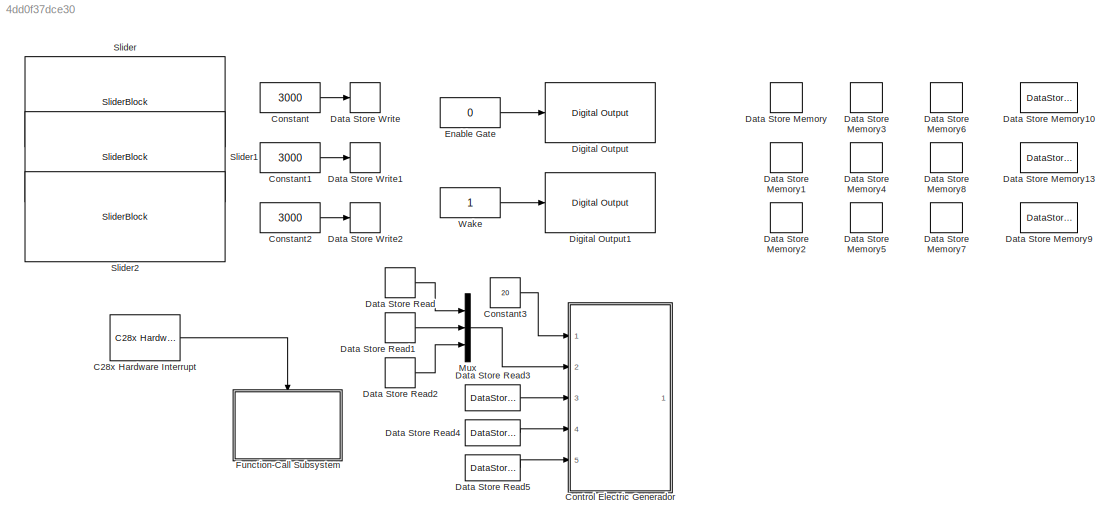
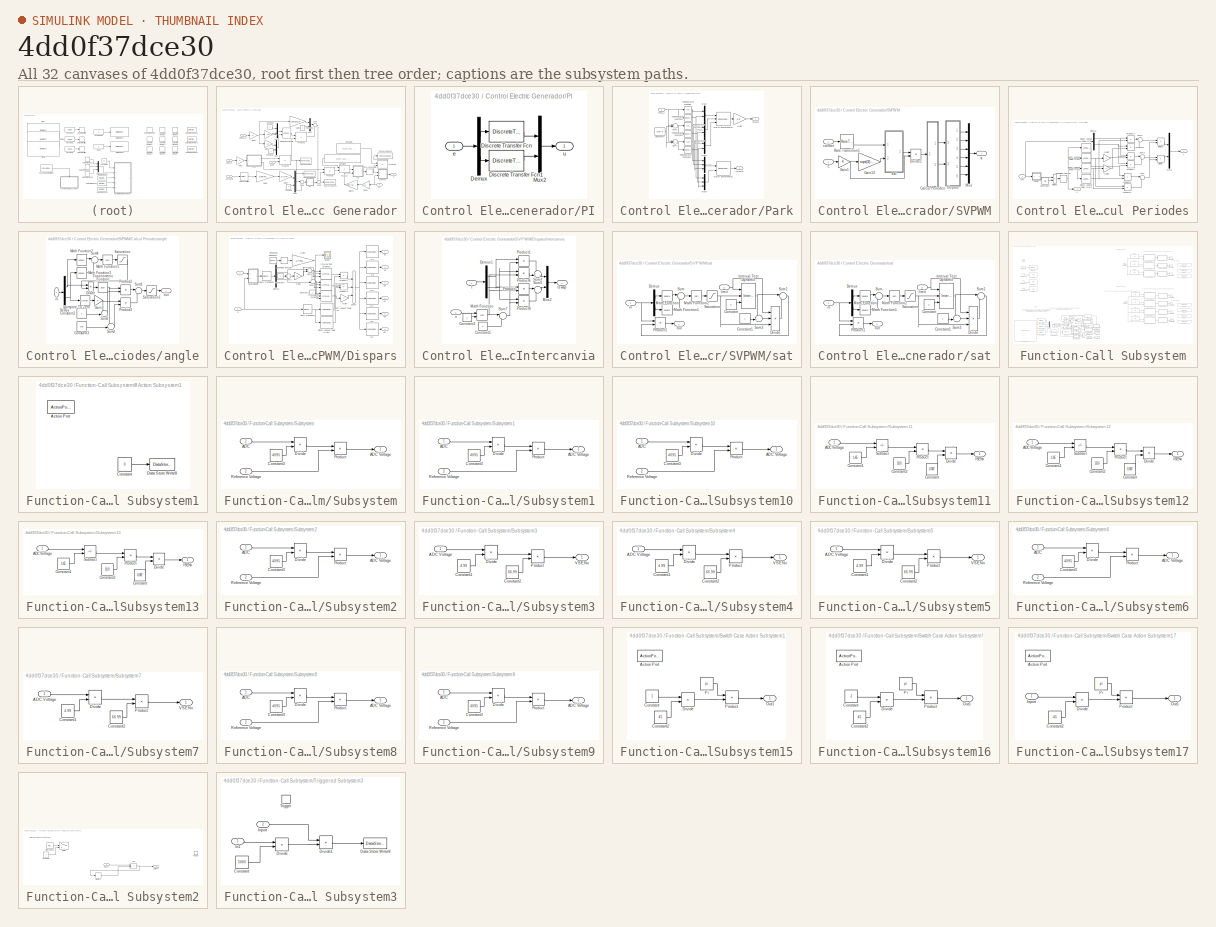
[diagram: thumbnail index - all 32 canvases of the model, root first then tree order]
MODEL slx_4dd0f37dce30
KIND model
CONFIG AbsTol = auto
CONFIG EnableMultiTasking = on
CONFIG FixedStep = auto
CONFIG MaxStep = auto
CONFIG MinStep = auto
CONFIG RelTol = 1e-3
CONFIG SampleTimeConstraint = Unconstrained
CONFIG SolverName = FixedStepDiscrete
CONFIG StartTime = 0.0
CONFIG StopTime = Inf
BLOCK [Reference] C28x Hardware Interrupt  REF=c2000lib/Scheduling/C28x Hardware Interrupt
  Ports = [0, 1]
  SourceBlock = c2000lib/Scheduling/C28x Hardware Interrupt
  SourceProductBaseCode = TIC2000
  SourceType = C28x Interrupt Block
BLOCK [Constant] Constant
  OutDataTypeStr = uint32
  Value = 3000
BLOCK [Constant] Constant1
  OutDataTypeStr = uint32
  Value = 3000
BLOCK [Constant] Constant2
  OutDataTypeStr = uint32
  Value = 3000
BLOCK [Constant] Constant3
  Value = 20
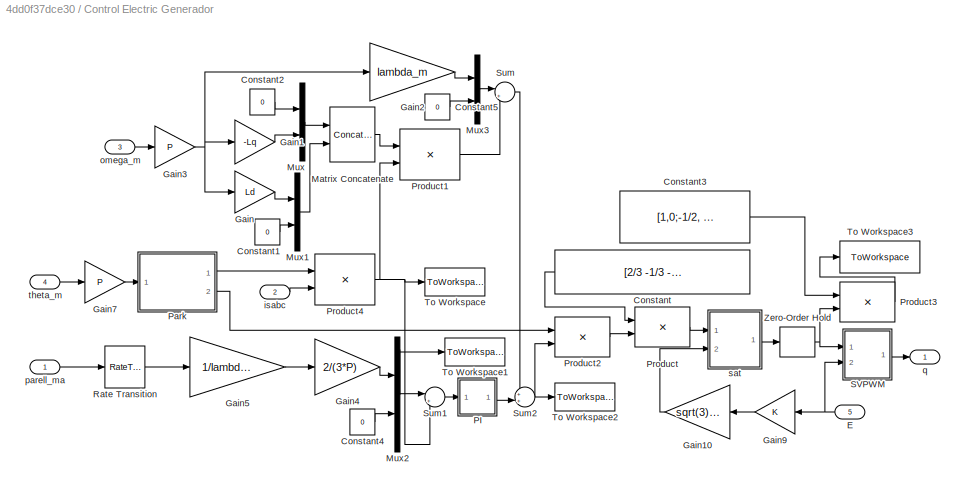
BLOCK [SubSystem] Control Electric Generador
  Ports = [5, 1]
  RequestExecContextInheritance = off
BLOCK [Constant] Control Electric Generador/Constant
  NameLocation = top
  SampleTime = T
  Value = [2/3 -1/3 -1/3; 0 -sqrt(3)/3 sqrt(3)/3]
BLOCK [Constant] Control Electric Generador/Constant1
  SampleTime = T
  Value = 0
BLOCK [Constant] Control Electric Generador/Constant2
  SampleTime = T
  Value = 0
BLOCK [Constant] Control Electric Generador/Constant3
  SampleTime = T
  Value = [1,0;-1/2, -sqrt(3)/2;-1/2, sqrt(3)/2]
BLOCK [Constant] Control Electric Generador/Constant4
  SampleTime = T
  Value = 0
BLOCK [Constant] Control Electric Generador/Constant5
  SampleTime = T
  Value = 0
BLOCK [Inport] Control Electric Generador/E
  Port = 5
  SampleTime = T
BLOCK [Gain] Control Electric Generador/Gain
  Gain = Ld
BLOCK [Gain] Control Electric Generador/Gain1
  Gain = -Lq
BLOCK [Gain] Control Electric Generador/Gain10
  Gain = sqrt(3)/3
  NameLocation = top
BLOCK [Gain] Control Electric Generador/Gain2
  Gain = lambda_m
BLOCK [Gain] Control Electric Generador/Gain3
  Gain = P
BLOCK [Gain] Control Electric Generador/Gain4
  Gain = 2/(3*P)
BLOCK [Gain] Control Electric Generador/Gain5
  Gain = 1/lambda_m
BLOCK [Gain] Control Electric Generador/Gain7
  Gain = P
BLOCK [Gain] Control Electric Generador/Gain9
  NameLocation = top
  SampleTime = T
BLOCK [Concatenate] Control Electric Generador/Matrix Concatenate
  ConcatenateDimension = 2
  Mode = Multidimensional array
  Ports = [2, 1]
BLOCK [Mux] Control Electric Generador/Mux
  DisplayOption = bar
  Inputs = 2
  Ports = [2, 1]
BLOCK [Mux] Control Electric Generador/Mux1
  DisplayOption = bar
  Inputs = 2
  Ports = [2, 1]
BLOCK [Mux] Control Electric Generador/Mux2
  DisplayOption = bar
  Inputs = 2
  Ports = [2, 1]
BLOCK [Mux] Control Electric Generador/Mux3
  DisplayOption = bar
  Inputs = 2
  Ports = [2, 1]
BLOCK [SubSystem] Control Electric Generador/PI
  Ports = [1, 1]
  RequestExecContextInheritance = off
BLOCK [Demux] Control Electric Generador/PI/Demux
  Outputs = 2
  Ports = [1, 2]
BLOCK [DiscreteTransferFcn] Control Electric Generador/PI/Discrete Transfer Fcn
  Denominator = [qGcden]
  InputPortMap = u0
  Numerator = [qGcnum]
  Ports = [1, 1]
  SampleTime = T
BLOCK [DiscreteTransferFcn] Control Electric Generador/PI/Discrete Transfer Fcn1
  Denominator = [dGcden]
  InputPortMap = u0
  Numerator = [dGcnum]
  Ports = [1, 1]
  SampleTime = T
BLOCK [Mux] Control Electric Generador/PI/Mux2
  DisplayOption = bar
  Inputs = 2
  Ports = [2, 1]
BLOCK [Inport] Control Electric Generador/PI/e
BLOCK [Outport] Control Electric Generador/PI/u
BLOCK [SubSystem] Control Electric Generador/Park
  Ports = [1, 2]
  RequestExecContextInheritance = off
BLOCK [Constant] Control Electric Generador/Park/Constant4
  SampleTime = T
  Value = 2*pi/3
BLOCK [Gain] Control Electric Generador/Park/Gain7
  Gain = 2/3
BLOCK [Concatenate] Control Electric Generador/Park/Matrix Concatenate1
  ConcatenateDimension = 2
  Mode = Multidimensional array
  NumInputs = 3
  Ports = [3, 1]
BLOCK [Concatenate] Control Electric Generador/Park/Matrix Concatenate2
  ConcatenateDimension = 2
  Mode = Multidimensional array
  Ports = [2, 1]
BLOCK [Mux] Control Electric Generador/Park/Mux2
  DisplayOption = bar
  Inputs = 2
  Ports = [2, 1]
BLOCK [Mux] Control Electric Generador/Park/Mux3
  DisplayOption = bar
  Inputs = 2
  Ports = [2, 1]
BLOCK [Mux] Control Electric Generador/Park/Mux4
  DisplayOption = bar
  Inputs = 2
  Ports = [2, 1]
BLOCK [Mux] Control Electric Generador/Park/Mux5
  DisplayOption = bar
  Inputs = 3
  Ports = [3, 1]
BLOCK [Mux] Control Electric Generador/Park/Mux6
  DisplayOption = bar
  Inputs = 3
  Ports = [3, 1]
BLOCK [Sum] Control Electric Generador/Park/Sum1
  Inputs = |++
  Ports = [2, 1]
BLOCK [Sum] Control Electric Generador/Park/Sum2
  Inputs = |+-
  Ports = [2, 1]
BLOCK [Trigonometry] Control Electric Generador/Park/Trigonometric Function
  Operator = cos
  Ports = [1, 1]
BLOCK [Trigonometry] Control Electric Generador/Park/Trigonometric Function1
  Ports = [1, 1]
BLOCK [Trigonometry] Control Electric Generador/Park/Trigonometric Function2
  Operator = cos
  Ports = [1, 1]
BLOCK [Trigonometry] Control Electric Generador/Park/Trigonometric Function3
  Ports = [1, 1]
BLOCK [Trigonometry] Control Electric Generador/Park/Trigonometric Function4
  Operator = cos
  Ports = [1, 1]
BLOCK [Trigonometry] Control Electric Generador/Park/Trigonometric Function5
  Ports = [1, 1]
BLOCK [Outport] Control Electric Generador/Park/Tthetar
BLOCK [Outport] Control Electric Generador/Park/nTthetar
  Port = 2
BLOCK [Inport] Control Electric Generador/Park/theta_r
BLOCK [Product] Control Electric Generador/Product
  Multiplication = Matrix(*)
  Ports = [2, 1]
  RndMeth = Zero
BLOCK [Product] Control Electric Generador/Product1
  Multiplication = Matrix(*)
  Ports = [2, 1]
  RndMeth = Zero
BLOCK [Product] Control Electric Generador/Product2
  Multiplication = Matrix(*)
  Ports = [2, 1]
  RndMeth = Zero
BLOCK [Product] Control Electric Generador/Product3
  Multiplication = Matrix(*)
  Ports = [2, 1]
  RndMeth = Zero
BLOCK [Product] Control Electric Generador/Product4
  Multiplication = Matrix(*)
  Ports = [2, 1]
  RndMeth = Zero
BLOCK [RateTransition] Control Electric Generador/Rate Transition
  OutPortSampleTime = T
BLOCK [SubSystem] Control Electric Generador/SVPWM
  Ports = [2, 1]
  RequestExecContextInheritance = off
BLOCK [SubSystem] Control Electric Generador/SVPWM/Calcul Periodes
  Ports = [1, 2]
  RequestExecContextInheritance = off
BLOCK [Constant] Control Electric Generador/SVPWM/Calcul Periodes/Constant2
  SampleTime = T
  Value = pi/3
BLOCK [Demux] Control Electric Generador/SVPWM/Calcul Periodes/Demux
  Outputs = 2
  Ports = [1, 2]
BLOCK [LookupNDDirect] Control Electric Generador/SVPWM/Calcul Periodes/Direct Lookup Table (n-D)
  NumberOfTableDimensions = 1
  Ports = [1, 1]
  Table = [2/3, 1/3, -1/3, -2/3, -1/3, 1/3]
BLOCK [LookupNDDirect] Control Electric Generador/SVPWM/Calcul Periodes/Direct Lookup Table (n-D)1
  NumberOfTableDimensions = 1
  Ports = [1, 1]
  Table = [0, -sqrt(3)/3, -sqrt(3)/3, 0 ,sqrt(3)/3, sqrt(3)/3]
BLOCK [LookupNDDirect] Control Electric Generador/SVPWM/Calcul Periodes/Direct Lookup Table (n-D)2
  NumberOfTableDimensions = 1
  Ports = [1, 1]
  Table = [1/3, -1/3, -2/3, -1/3, 1/3,2/3]
BLOCK [LookupNDDirect] Control Electric Generador/SVPWM/Calcul Periodes/Direct Lookup Table (n-D)3
  NumberOfTableDimensions = 1
  Ports = [1, 1]
  Table = [-sqrt(3)/3, -sqrt(3)/3, 0 ,sqrt(3)/3, sqrt(3)/3,0]
BLOCK [Product] Control Electric Generador/SVPWM/Calcul Periodes/Divide
  Inputs = */
  Ports = [2, 1]
BLOCK [Product] Control Electric Generador/SVPWM/Calcul Periodes/Divide1
  Inputs = */
  Ports = [2, 1]
BLOCK [Product] Control Electric Generador/SVPWM/Calcul Periodes/Divide2
  Inputs = */
  Ports = [2, 1]
BLOCK [Gain] Control Electric Generador/SVPWM/Calcul Periodes/Gain3
  Gain = -1
BLOCK [Gain] Control Electric Generador/SVPWM/Calcul Periodes/Gain4
  Gain = -1
BLOCK [Mux] Control Electric Generador/SVPWM/Calcul Periodes/Mux3
  DisplayOption = bar
  Inputs = 2
  Ports = [2, 1]
BLOCK [Product] Control Electric Generador/SVPWM/Calcul Periodes/Product1
  Ports = [2, 1]
  RndMeth = Zero
BLOCK [Product] Control Electric Generador/SVPWM/Calcul Periodes/Product2
  Ports = [2, 1]
  RndMeth = Zero
BLOCK [Product] Control Electric Generador/SVPWM/Calcul Periodes/Product4
  Ports = [2, 1]
  RndMeth = Zero
BLOCK [Product] Control Electric Generador/SVPWM/Calcul Periodes/Product5
  Ports = [2, 1]
  RndMeth = Zero
BLOCK [Product] Control Electric Generador/SVPWM/Calcul Periodes/Product6
  Ports = [2, 1]
  RndMeth = Zero
BLOCK [Product] Control Electric Generador/SVPWM/Calcul Periodes/Product7
  Ports = [2, 1]
  RndMeth = Zero
BLOCK [Rounding] Control Electric Generador/SVPWM/Calcul Periodes/Rounding Function
BLOCK [Sum] Control Electric Generador/SVPWM/Calcul Periodes/Sum
  Inputs = |+-
  Ports = [2, 1]
BLOCK [Sum] Control Electric Generador/SVPWM/Calcul Periodes/Sum2
  Inputs = |++
  Ports = [2, 1]
BLOCK [Sum] Control Electric Generador/SVPWM/Calcul Periodes/Sum3
  Inputs = |++
  Ports = [2, 1]
BLOCK [SubSystem] Control Electric Generador/SVPWM/Calcul Periodes/angle
  Ports = [1, 1]
  RequestExecContextInheritance = off
BLOCK [Reference] Control Electric Generador/SVPWM/Calcul Periodes/angle/Compare To Zero  REF=simulink/Logic and Bit
Operations/Compare
To Zero
  Ports = [1, 1]
  SourceBlock = simulink/Logic and Bit\nOperations/Compare\nTo Zero
  SourceProductBaseCode = SL
  SourceType = Compare To Zero
BLOCK [Constant] Control Electric Generador/SVPWM/Calcul Periodes/angle/Constant2
  SampleTime = T
BLOCK [Constant] Control Electric Generador/SVPWM/Calcul Periodes/angle/Constant3
  SampleTime = T
  Value = 2*pi
BLOCK [Demux] Control Electric Generador/SVPWM/Calcul Periodes/angle/Demux
  Outputs = 2
  Ports = [1, 2]
BLOCK [Product] Control Electric Generador/SVPWM/Calcul Periodes/angle/Divide
  Inputs = */
  Ports = [2, 1]
BLOCK [Gain] Control Electric Generador/SVPWM/Calcul Periodes/angle/Gain3
  SampleTime = T
BLOCK [Math] Control Electric Generador/SVPWM/Calcul Periodes/angle/Math Function1
  Operator = sqrt
  Ports = [1, 1]
  SignedPower = on
BLOCK [Math] Control Electric Generador/SVPWM/Calcul Periodes/angle/Math Function2
  Operator = square
  Ports = [1, 1]
  SignedPower = on
BLOCK [Math] Control Electric Generador/SVPWM/Calcul Periodes/angle/Math Function3
  Operator = square
  Ports = [1, 1]
  SignedPower = on
BLOCK [Product] Control Electric Generador/SVPWM/Calcul Periodes/angle/Product2
  Ports = [2, 1]
  RndMeth = Zero
BLOCK [Product] Control Electric Generador/SVPWM/Calcul Periodes/angle/Product3
  Ports = [2, 1]
  RndMeth = Zero
BLOCK [Saturate] Control Electric Generador/SVPWM/Calcul Periodes/angle/Saturation
  LowerLimit = 1e-3
  UpperLimit = inf
BLOCK [Saturate] Control Electric Generador/SVPWM/Calcul Periodes/angle/Saturation1
  LowerLimit = 0
  UpperLimit = 2*pi-1e-3
BLOCK [Sum] Control Electric Generador/SVPWM/Calcul Periodes/angle/Sum1
  Inputs = |++
  Ports = [2, 1]
BLOCK [Sum] Control Electric Generador/SVPWM/Calcul Periodes/angle/Sum2
  Inputs = -+|
  Ports = [2, 1]
BLOCK [Sum] Control Electric Generador/SVPWM/Calcul Periodes/angle/Sum3
  Inputs = -+|
  Ports = [2, 1]
BLOCK [Sum] Control Electric Generador/SVPWM/Calcul Periodes/angle/Sum4
  Inputs = |++
  Ports = [2, 1]
BLOCK [Trigonometry] Control Electric Generador/SVPWM/Calcul Periodes/angle/Trigonometric Function
  Operator = acos
  Ports = [1, 1]
BLOCK [Inport] Control Electric Generador/SVPWM/Calcul Periodes/angle/in
  NameLocation = top
BLOCK [Outport] Control Electric Generador/SVPWM/Calcul Periodes/angle/out
BLOCK [Outport] Control Electric Generador/SVPWM/Calcul Periodes/n
  Port = 2
BLOCK [Outport] Control Electric Generador/SVPWM/Calcul Periodes/t
BLOCK [Inport] Control Electric Generador/SVPWM/Calcul Periodes/vsc
BLOCK [SubSystem] Control Electric Generador/SVPWM/Dispars
  Ports = [2, 6]
  RequestExecContextInheritance = off
BLOCK [Constant] Control Electric Generador/SVPWM/Dispars/Constant1
  SampleTime = T/resolucio
BLOCK [Constant] Control Electric Generador/SVPWM/Dispars/Constant4
  SampleTime = T/resolucio
BLOCK [Demux] Control Electric Generador/SVPWM/Dispars/Demux
  Outputs = 2
  Ports = [1, 2]
BLOCK [LookupNDDirect] Control Electric Generador/SVPWM/Dispars/Direct Lookup Table (n-D)
  NumberOfTableDimensions = 1
  Ports = [1, 1]
  Table = [1,3,3,5,5,1]
BLOCK [LookupNDDirect] Control Electric Generador/SVPWM/Dispars/Direct Lookup Table (n-D)5
  NumberOfTableDimensions = 1
  Ports = [1, 1]
  Table = [2,2,4,4,6,6]
BLOCK [Gain] Control Electric Generador/SVPWM/Dispars/Gain1
  Gain = 1/2
  SampleTime = parControl.Electric.Generador.T/64
BLOCK [Gain] Control Electric Generador/SVPWM/Dispars/Gain4
  Gain = 1/(resolucio-1)
  SampleTime = T/resolucio
BLOCK [Gain] Control Electric Generador/SVPWM/Dispars/Gain7
  Gain = 7
BLOCK [SubSystem] Control Electric Generador/SVPWM/Dispars/Intercanvia
  Ports = [2, 1]
  RequestExecContextInheritance = off
BLOCK [Constant] Control Electric Generador/SVPWM/Dispars/Intercanvia/Constant3
  SampleTime = parControl.Electric.Generador.T/64
  Value = 2
BLOCK [Constant] Control Electric Generador/SVPWM/Dispars/Intercanvia/Constant5
  SampleTime = parControl.Electric.Generador.T/64
BLOCK [Demux] Control Electric Generador/SVPWM/Dispars/Intercanvia/Demux1
  Outputs = 2
  Ports = [1, 2]
BLOCK [Math] Control Electric Generador/SVPWM/Dispars/Intercanvia/Math Function
  Operator = rem
  Ports = [2, 1]
  SignedPower = on
BLOCK [Mux] Control Electric Generador/SVPWM/Dispars/Intercanvia/Mux2
  DisplayOption = bar
  Inputs = 2
  Ports = [2, 1]
BLOCK [Product] Control Electric Generador/SVPWM/Dispars/Intercanvia/Product1
  Ports = [2, 1]
  RndMeth = Zero
BLOCK [Product] Control Electric Generador/SVPWM/Dispars/Intercanvia/Product6
  Ports = [2, 1]
  RndMeth = Zero
BLOCK [Product] Control Electric Generador/SVPWM/Dispars/Intercanvia/Product7
  Ports = [2, 1]
  RndMeth = Zero
BLOCK [Product] Control Electric Generador/SVPWM/Dispars/Intercanvia/Product8
  Ports = [2, 1]
  RndMeth = Zero
BLOCK [Sum] Control Electric Generador/SVPWM/Dispars/Intercanvia/Sum4
  Inputs = ++|
  Ports = [2, 1]
BLOCK [Sum] Control Electric Generador/SVPWM/Dispars/Intercanvia/Sum5
  Inputs = |++
  Ports = [2, 1]
BLOCK [Sum] Control Electric Generador/SVPWM/Dispars/Intercanvia/Sum7
  Inputs = |-+
  Ports = [2, 1]
BLOCK [Inport] Control Electric Generador/SVPWM/Dispars/Intercanvia/n
  Port = 2
BLOCK [Inport] Control Electric Generador/SVPWM/Dispars/Intercanvia/t
BLOCK [Outport] Control Electric Generador/SVPWM/Dispars/Intercanvia/tswap
BLOCK [Reference] Control Electric Generador/SVPWM/Dispars/Interval Test Dynamic1  REF=simulink/Logic and Bit
Operations/Interval Test
Dynamic
  Ports = [3, 1]
  SourceBlock = simulink/Logic and Bit\nOperations/Interval Test\nDynamic
  SourceProductBaseCode = SL
  SourceType = Interval Test Dynamic
BLOCK [Reference] Control Electric Generador/SVPWM/Dispars/Interval Test Dynamic2  REF=simulink/Logic and Bit
Operations/Interval Test
Dynamic
  Ports = [3, 1]
  SourceBlock = simulink/Logic and Bit\nOperations/Interval Test\nDynamic
  SourceProductBaseCode = SL
  SourceType = Interval Test Dynamic
BLOCK [Reference] Control Electric Generador/SVPWM/Dispars/Interval Test Dynamic4  REF=simulink/Logic and Bit
Operations/Interval Test
Dynamic
  Ports = [3, 1]
  SourceBlock = simulink/Logic and Bit\nOperations/Interval Test\nDynamic
  SourceProductBaseCode = SL
  SourceType = Interval Test Dynamic
BLOCK [Product] Control Electric Generador/SVPWM/Dispars/Product3
  Ports = [2, 1]
  RndMeth = Zero
BLOCK [Product] Control Electric Generador/SVPWM/Dispars/Product4
  Ports = [2, 1]
  RndMeth = Zero
BLOCK [LookupNDDirect] Control Electric Generador/SVPWM/Dispars/Q1
  NumberOfTableDimensions = 1
  Ports = [1, 1]
  Table = [0,1,1,0,0,0,1,1]
BLOCK [LookupNDDirect] Control Electric Generador/SVPWM/Dispars/Q2
  NumberOfTableDimensions = 1
  Ports = [1, 1]
  Table = [1,1,1,1,0,0,0,0]
BLOCK [LookupNDDirect] Control Electric Generador/SVPWM/Dispars/Q3
  NumberOfTableDimensions = 1
  Ports = [1, 1]
  Table = [0,0,1,1,1,0,0,1]
BLOCK [LookupNDDirect] Control Electric Generador/SVPWM/Dispars/Q4
  NumberOfTableDimensions = 1
  Ports = [1, 1]
  Table = [1,0,0,1,1,1,0,0]
BLOCK [LookupNDDirect] Control Electric Generador/SVPWM/Dispars/Q5
  NumberOfTableDimensions = 1
  Ports = [1, 1]
  Table = [0,0,0,0,1,1,1,1]
BLOCK [LookupNDDirect] Control Electric Generador/SVPWM/Dispars/Q6
  NumberOfTableDimensions = 1
  Ports = [1, 1]
  Table = [1,1,0,0,0,1,1,0]
BLOCK [RateTransition] Control Electric Generador/SVPWM/Dispars/Rate Transition1
  OutPortSampleTime = T/resolucio
BLOCK [RateTransition] Control Electric Generador/SVPWM/Dispars/Rate Transition2
  OutPortSampleTime = T/resolucio
BLOCK [Reference] Control Electric Generador/SVPWM/Dispars/Repeating Sequence  REF=simulink/Sources/Repeating
Sequence
  Ports = [0, 1]
  SourceBlock = simulink/Sources/Repeating\nSequence
  SourceProductBaseCode = SL
  SourceType = Repeating table
BLOCK [Rounding] Control Electric Generador/SVPWM/Dispars/Rounding Function
BLOCK [Scope] Control Electric Generador/SVPWM/Dispars/Scope
  Floating = off
  NumInputPorts = 1
  Ports = [1]
  ScopeSpecificationString = Simulink.scopes.TimeScopeBlockCfg('CurrentConfiguration', extmgr.ConfigurationSet(extmgr.Configuration('Core','General UI',true),extmgr.Configuration('Core','Source UI',true),extmgr.Configuration('Sources','WiredSimulink',true,'DataLoggingVariableName','ScopeData5'),extmgr.Configuration('Visuals','Time Domain',true),extmgr.Configuration('Tools','Plot Navigation',true),extmgr.Configuration('Tools',...<+40ch>
BLOCK [Sum] Control Electric Generador/SVPWM/Dispars/Sum1
  Inputs = -+-
  Ports = [3, 1]
BLOCK [Sum] Control Electric Generador/SVPWM/Dispars/Sum2
  Inputs = |++
  Ports = [2, 1]
BLOCK [Sum] Control Electric Generador/SVPWM/Dispars/Sum3
  Inputs = ++|
  Ports = [2, 1]
BLOCK [Sum] Control Electric Generador/SVPWM/Dispars/Sum6
  IconShape = rectangular
  Inputs = +++
  Ports = [3, 1]
BLOCK [Inport] Control Electric Generador/SVPWM/Dispars/n
  Port = 2
BLOCK [Outport] Control Electric Generador/SVPWM/Dispars/q1
BLOCK [Outport] Control Electric Generador/SVPWM/Dispars/q2
  Port = 2
BLOCK [Outport] Control Electric Generador/SVPWM/Dispars/q3
  Port = 3
BLOCK [Outport] Control Electric Generador/SVPWM/Dispars/q4
  Port = 4
BLOCK [Outport] Control Electric Generador/SVPWM/Dispars/q5
  Port = 5
BLOCK [Outport] Control Electric Generador/SVPWM/Dispars/q6
  Port = 6
BLOCK [Inport] Control Electric Generador/SVPWM/Dispars/t
BLOCK [Product] Control Electric Generador/SVPWM/Divide1
  Inputs = */
  Ports = [2, 1]
BLOCK [Inport] Control Electric Generador/SVPWM/E
  Port = 2
BLOCK [Gain] Control Electric Generador/SVPWM/Gain1
  SampleTime = T
BLOCK [Gain] Control Electric Generador/SVPWM/Gain10
  Gain = sqrt(3)/3
BLOCK [Mux] Control Electric Generador/SVPWM/Mux
  DisplayOption = bar
  Inputs = 6
  Ports = [6, 1]
BLOCK [RateTransition] Control Electric Generador/SVPWM/Rate Transition1
  OutPortSampleTime = T
BLOCK [Outport] Control Electric Generador/SVPWM/q
BLOCK [SubSystem] Control Electric Generador/SVPWM/sat
  Ports = [2, 1]
  RequestExecContextInheritance = off
BLOCK [Constant] Control Electric Generador/SVPWM/sat/Constant
  SampleTime = T
  Value = 0
BLOCK [Constant] Control Electric Generador/SVPWM/sat/Constant1
  SampleTime = T
BLOCK [Demux] Control Electric Generador/SVPWM/sat/Demux
  Outputs = 2
  Ports = [1, 2]
BLOCK [Product] Control Electric Generador/SVPWM/sat/Divide
  Inputs = **/
  Ports = [3, 1]
BLOCK [Reference] Control Electric Generador/SVPWM/sat/Interval Test Dynamic  REF=simulink/Logic and Bit
Operations/Interval Test
Dynamic
  Ports = [3, 1]
  SourceBlock = simulink/Logic and Bit\nOperations/Interval Test\nDynamic
  SourceProductBaseCode = SL
  SourceType = Interval Test Dynamic
BLOCK [Math] Control Electric Generador/SVPWM/sat/Math Function
  Operator = square
  Ports = [1, 1]
  SignedPower = on
BLOCK [Math] Control Electric Generador/SVPWM/sat/Math Function1
  Operator = square
  Ports = [1, 1]
  SignedPower = on
BLOCK [Math] Control Electric Generador/SVPWM/sat/Math Function2
  Operator = sqrt
  Ports = [1, 1]
  SignedPower = on
BLOCK [Product] Control Electric Generador/SVPWM/sat/Product1
  Ports = [2, 1]
  RndMeth = Zero
BLOCK [Saturate] Control Electric Generador/SVPWM/sat/Saturation
  LowerLimit = 1
  UpperLimit = inf
BLOCK [Sum] Control Electric Generador/SVPWM/sat/Sum
  Inputs = |++
  Ports = [2, 1]
BLOCK [Sum] Control Electric Generador/SVPWM/sat/Sum1
  Inputs = |++
  Ports = [2, 1]
BLOCK [Sum] Control Electric Generador/SVPWM/sat/Sum2
  Inputs = -+|
  Ports = [2, 1]
BLOCK [Inport] Control Electric Generador/SVPWM/sat/in
BLOCK [Inport] Control Electric Generador/SVPWM/sat/limit
  Port = 2
BLOCK [Outport] Control Electric Generador/SVPWM/sat/out
BLOCK [Inport] Control Electric Generador/SVPWM/valfbet
BLOCK [Sum] Control Electric Generador/Sum
  Inputs = |++
  Ports = [2, 1]
BLOCK [Sum] Control Electric Generador/Sum1
  Inputs = |+-
  Ports = [2, 1]
BLOCK [Sum] Control Electric Generador/Sum2
  Inputs = ++|
  Ports = [2, 1]
BLOCK [ToWorkspace] Control Electric Generador/To Workspace
  Decimation = parSimulacio.captura.Delmat
  MaxDataPoints = inf
  Ports = [1]
  SampleTime = parSimulacio.captura.Tmostreig
  VariableName = capisqd
BLOCK [ToWorkspace] Control Electric Generador/To Workspace1
  Decimation = parSimulacio.captura.Delmat
  MaxDataPoints = inf
  Ports = [1]
  SampleTime = parSimulacio.captura.Tmostreig
  VariableName = capisqda
BLOCK [ToWorkspace] Control Electric Generador/To Workspace2
  Decimation = parSimulacio.captura.Delmat
  MaxDataPoints = inf
  Ports = [1]
  SampleTime = parSimulacio.captura.Tmostreig
  VariableName = capvscqd
BLOCK [ToWorkspace] Control Electric Generador/To Workspace3
  Decimation = parSimulacio.captura.Delmat
  MaxDataPoints = inf
  Ports = [1]
  SampleTime = parSimulacio.captura.Tmostreig
  VariableName = capvscabc
BLOCK [ZeroOrderHold] Control Electric Generador/Zero-Order Hold
  SampleTime = T
BLOCK [Inport] Control Electric Generador/isabc
  Port = 2
  SampleTime = T
BLOCK [Inport] Control Electric Generador/omega_m
  Port = 3
  SampleTime = T
BLOCK [Inport] Control Electric Generador/parell_ma
BLOCK [Outport] Control Electric Generador/q
BLOCK [SubSystem] Control Electric Generador/sat
  Ports = [2, 1]
  RequestExecContextInheritance = off
BLOCK [Constant] Control Electric Generador/sat/Constant
  SampleTime = T
  Value = 0
BLOCK [Constant] Control Electric Generador/sat/Constant1
  SampleTime = T
BLOCK [Demux] Control Electric Generador/sat/Demux
  Outputs = 2
  Ports = [1, 2]
BLOCK [Product] Control Electric Generador/sat/Divide
  Inputs = **/
  Ports = [3, 1]
BLOCK [Reference] Control Electric Generador/sat/Interval Test Dynamic  REF=simulink/Logic and Bit
Operations/Interval Test
Dynamic
  Ports = [3, 1]
  SourceBlock = simulink/Logic and Bit\nOperations/Interval Test\nDynamic
  SourceProductBaseCode = SL
  SourceType = Interval Test Dynamic
BLOCK [Math] Control Electric Generador/sat/Math Function
  Operator = square
  Ports = [1, 1]
  SignedPower = on
BLOCK [Math] Control Electric Generador/sat/Math Function1
  Operator = square
  Ports = [1, 1]
  SignedPower = on
BLOCK [Math] Control Electric Generador/sat/Math Function2
  Operator = sqrt
  Ports = [1, 1]
  SignedPower = on
BLOCK [Product] Control Electric Generador/sat/Product1
  Ports = [2, 1]
  RndMeth = Zero
BLOCK [Saturate] Control Electric Generador/sat/Saturation
  LowerLimit = 1
  UpperLimit = inf
BLOCK [Sum] Control Electric Generador/sat/Sum
  Inputs = |++
  Ports = [2, 1]
BLOCK [Sum] Control Electric Generador/sat/Sum1
  Inputs = |++
  Ports = [2, 1]
BLOCK [Sum] Control Electric Generador/sat/Sum2
  Inputs = -+|
  Ports = [2, 1]
BLOCK [Inport] Control Electric Generador/sat/in
BLOCK [Inport] Control Electric Generador/sat/limit
  Port = 2
BLOCK [Outport] Control Electric Generador/sat/out
BLOCK [Inport] Control Electric Generador/theta_m
  Port = 4
  PortDimensions = 1
  SampleTime = T
BLOCK [DataStoreMemory] Data Store Memory
  OutDataTypeStr = uint32
  ReadBeforeWriteMsg = warning
  ShowAdditionalParam = off
  WriteAfterReadMsg = warning
  WriteAfterWriteMsg = warning
BLOCK [DataStoreMemory] Data Store Memory1
  DataStoreName = B
  OutDataTypeStr = uint32
  ReadBeforeWriteMsg = warning
  ShowAdditionalParam = off
  WriteAfterReadMsg = warning
  WriteAfterWriteMsg = warning
BLOCK [DataStoreMemory] Data Store Memory10
  DataStoreName = MOT_VEL
  OutDataTypeStr = single
  ReadBeforeWriteMsg = warning
  ShowAdditionalParam = off
  WriteAfterReadMsg = warning
  WriteAfterWriteMsg = warning
BLOCK [DataStoreMemory] Data Store Memory13
  DataStoreName = MOT_POS
  OutDataTypeStr = single
  ReadBeforeWriteMsg = warning
  ShowAdditionalParam = off
  WriteAfterReadMsg = warning
  WriteAfterWriteMsg = warning
BLOCK [DataStoreMemory] Data Store Memory2
  DataStoreName = C
  OutDataTypeStr = uint32
  ReadBeforeWriteMsg = warning
  ShowAdditionalParam = off
  WriteAfterReadMsg = warning
  WriteAfterWriteMsg = warning
BLOCK [DataStoreMemory] Data Store Memory3
  DataStoreName = I_A
  OutDataTypeStr = single
  ReadBeforeWriteMsg = warning
  ShowAdditionalParam = off
  WriteAfterReadMsg = warning
  WriteAfterWriteMsg = warning
BLOCK [DataStoreMemory] Data Store Memory4
  DataStoreName = I_B
  OutDataTypeStr = single
  ReadBeforeWriteMsg = warning
  ShowAdditionalParam = off
  WriteAfterReadMsg = warning
  WriteAfterWriteMsg = warning
BLOCK [DataStoreMemory] Data Store Memory5
  DataStoreName = I_C
  OutDataTypeStr = single
  ReadBeforeWriteMsg = warning
  ShowAdditionalParam = off
  WriteAfterReadMsg = warning
  WriteAfterWriteMsg = warning
BLOCK [DataStoreMemory] Data Store Memory6
  DataStoreName = V_A
  OutDataTypeStr = single
  ReadBeforeWriteMsg = warning
  ShowAdditionalParam = off
  WriteAfterReadMsg = warning
  WriteAfterWriteMsg = warning
BLOCK [DataStoreMemory] Data Store Memory7
  DataStoreName = V_B
  OutDataTypeStr = single
  ReadBeforeWriteMsg = warning
  ShowAdditionalParam = off
  WriteAfterReadMsg = warning
  WriteAfterWriteMsg = warning
BLOCK [DataStoreMemory] Data Store Memory8
  DataStoreName = V_C
  OutDataTypeStr = single
  ReadBeforeWriteMsg = warning
  ShowAdditionalParam = off
  WriteAfterReadMsg = warning
  WriteAfterWriteMsg = warning
BLOCK [DataStoreMemory] Data Store Memory9
  DataStoreName = V_PVDD
  OutDataTypeStr = single
  ReadBeforeWriteMsg = warning
  ShowAdditionalParam = off
  WriteAfterReadMsg = warning
  WriteAfterWriteMsg = warning
BLOCK [DataStoreRead] Data Store Read
  DataStoreName = I_A
  IndexOptions = Index vector (dialog)
  Indices = 1
  OutputSizes = 1
  Ports = [0, 1]
BLOCK [DataStoreRead] Data Store Read1
  DataStoreName = I_B
  IndexOptions = Index vector (dialog)
  Indices = 1
  OutputSizes = 1
  Ports = [0, 1]
BLOCK [DataStoreRead] Data Store Read2
  DataStoreName = I_C
  IndexOptions = Index vector (dialog)
  Indices = 1
  OutputSizes = 1
  Ports = [0, 1]
BLOCK [DataStoreRead] Data Store Read3
  DataStoreName = MOT_VEL
  IndexOptions = Index vector (dialog)
  Indices = 1
  OutputSizes = 1
  Ports = [0, 1]
BLOCK [DataStoreRead] Data Store Read4
  DataStoreName = MOT_POS
  IndexOptions = Index vector (dialog)
  Indices = 1
  OutputSizes = 1
  Ports = [0, 1]
BLOCK [DataStoreRead] Data Store Read5
  DataStoreName = V_PVDD
  IndexOptions = Index vector (dialog)
  Indices = 1
  OutputSizes = 1
  Ports = [0, 1]
BLOCK [DataStoreWrite] Data Store Write
  IndexOptions = Index vector (dialog)
  Indices = 1
  OutputSizes = 1
  Ports = [1]
BLOCK [DataStoreWrite] Data Store Write1
  DataStoreName = B
  IndexOptions = Index vector (dialog)
  Indices = 1
  OutputSizes = 1
  Ports = [1]
BLOCK [DataStoreWrite] Data Store Write2
  DataStoreName = C
  IndexOptions = Index vector (dialog)
  Indices = 1
  OutputSizes = 1
  Ports = [1]
BLOCK [Reference] Digital Output  REF=c2837xDlib/Digital Output
  Ports = [1]
  SourceBlock = c2837xDlib/Digital Output
  SourceProductBaseCode = TIC2000
  SourceType = F2837x GPIO Digital Output
  UserDataPersistent = on
BLOCK [Reference] Digital Output1  REF=c2837xDlib/Digital Output
  Ports = [1]
  SourceBlock = c2837xDlib/Digital Output
  SourceProductBaseCode = TIC2000
  SourceType = F2837x GPIO Digital Output
  UserDataPersistent = on
BLOCK [Constant] Enable Gate
  OutDataTypeStr = uint32
  Value = 0
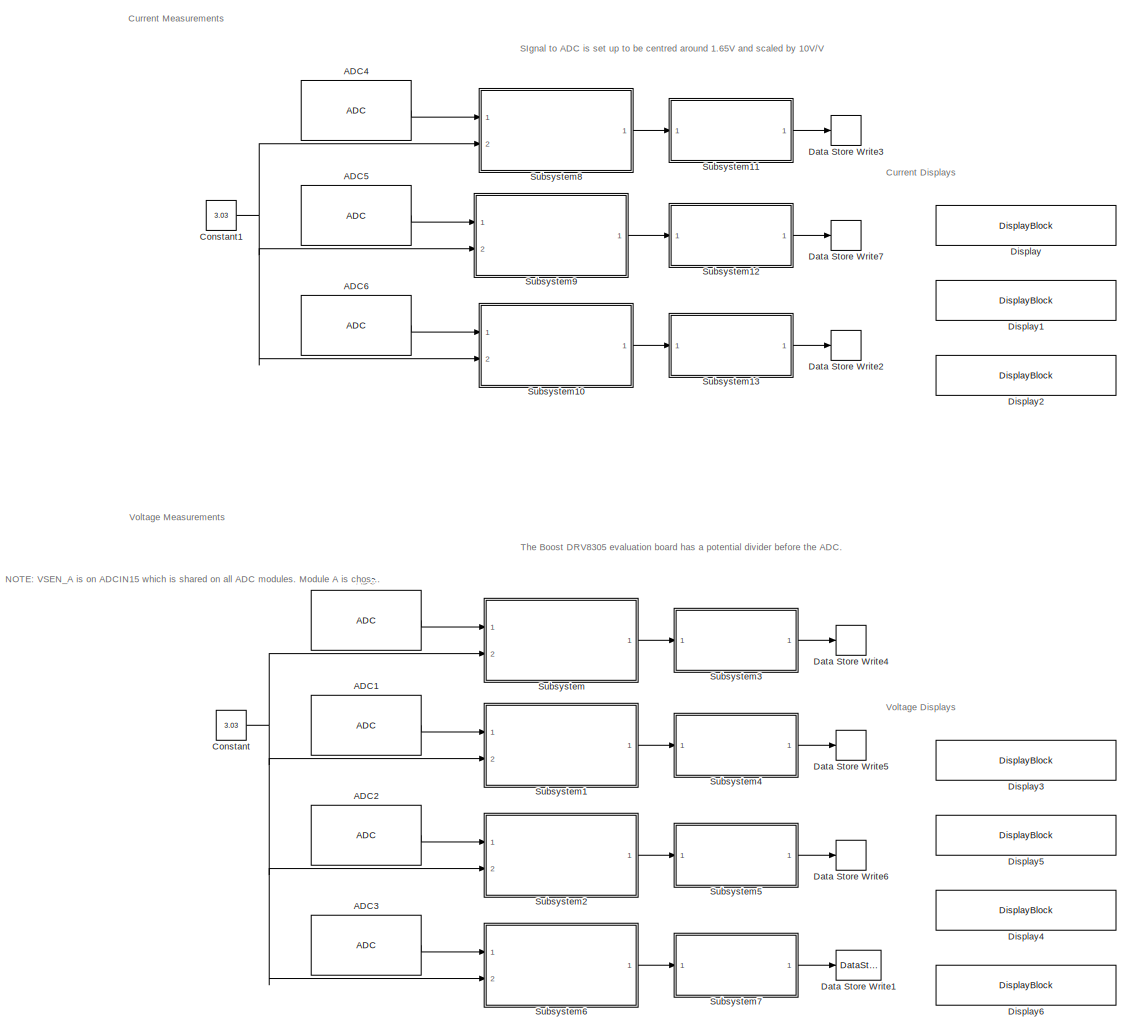
[diagram: Function-Call Subsystem - part 1/3, right side, full height]
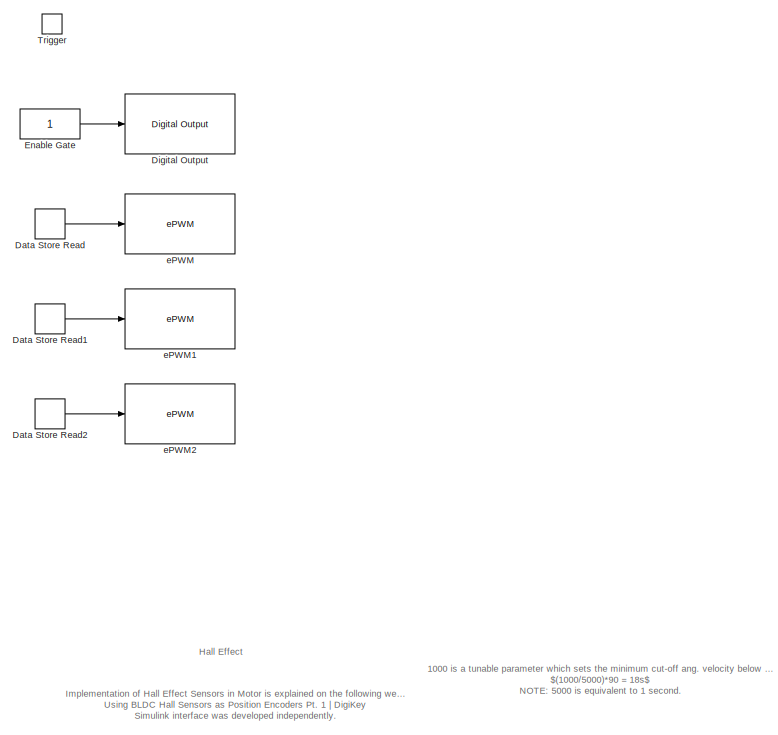
[diagram: Function-Call Subsystem - part 2/3, middle left region]
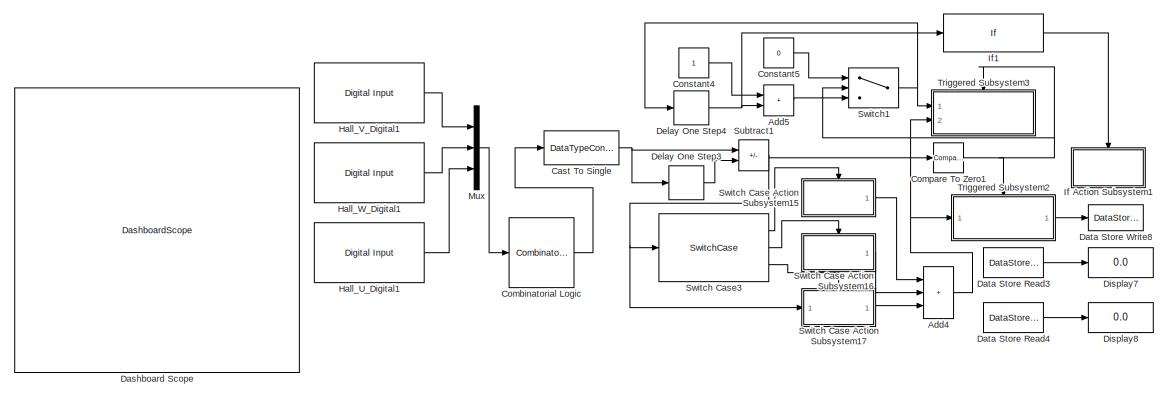
[diagram: Function-Call Subsystem - part 3/3, bottom left region]
BLOCK [SubSystem] Function-Call Subsystem
  Ports = [0, 0, 0, 1]
  RequestExecContextInheritance = off
  TreatAsAtomicUnit = on
BLOCK [Reference] Function-Call Subsystem/ADC  REF=c2802xlib/ADC
  Ports = [0, 1]
  SourceBlock = c2802xlib/ADC
  SourceProductName = Embedded Coder Support Package for Texas Instruments C2000 Processors
  SourceType = ADC Type 3-5
  UserDataPersistent = on
BLOCK [Reference] Function-Call Subsystem/ADC1  REF=c2802xlib/ADC
  Ports = [0, 1]
  SourceBlock = c2802xlib/ADC
  SourceProductName = Embedded Coder Support Package for Texas Instruments C2000 Processors
  SourceType = ADC Type 3-5
  UserDataPersistent = on
BLOCK [Reference] Function-Call Subsystem/ADC2  REF=c2802xlib/ADC
  Ports = [0, 1]
  SourceBlock = c2802xlib/ADC
  SourceProductName = Embedded Coder Support Package for Texas Instruments C2000 Processors
  SourceType = ADC Type 3-5
  UserDataPersistent = on
BLOCK [Reference] Function-Call Subsystem/ADC3  REF=c2802xlib/ADC
  Ports = [0, 1]
  SourceBlock = c2802xlib/ADC
  SourceProductName = Embedded Coder Support Package for Texas Instruments C2000 Processors
  SourceType = ADC Type 3-5
  UserDataPersistent = on
BLOCK [Reference] Function-Call Subsystem/ADC4  REF=c2802xlib/ADC
  Ports = [0, 1]
  SourceBlock = c2802xlib/ADC
  SourceProductName = Embedded Coder Support Package for Texas Instruments C2000 Processors
  SourceType = ADC Type 3-5
  UserDataPersistent = on
BLOCK [Reference] Function-Call Subsystem/ADC5  REF=c2802xlib/ADC
  Ports = [0, 1]
  SourceBlock = c2802xlib/ADC
  SourceProductName = Embedded Coder Support Package for Texas Instruments C2000 Processors
  SourceType = ADC Type 3-5
  UserDataPersistent = on
BLOCK [Reference] Function-Call Subsystem/ADC6  REF=c2802xlib/ADC
  Ports = [0, 1]
  SourceBlock = c2802xlib/ADC
  SourceProductName = Embedded Coder Support Package for Texas Instruments C2000 Processors
  SourceType = ADC Type 3-5
  UserDataPersistent = on
BLOCK [Sum] Function-Call Subsystem/Add4
  AccumDataTypeStr = single
  IconShape = rectangular
  Inputs = +++
  Ports = [3, 1]
BLOCK [Sum] Function-Call Subsystem/Add5
  IconShape = rectangular
  Ports = [2, 1]
BLOCK [DataTypeConversion] Function-Call Subsystem/Cast To Single
  OutDataTypeStr = single
  RndMeth = Floor
  SaturateOnIntegerOverflow = off
BLOCK [CombinatorialLogic] Function-Call Subsystem/Combinatorial Logic
  TruthTable = [0;1;3;2;5;6;4;7]
BLOCK [Reference] Function-Call Subsystem/Compare To Zero1  REF=simulink/Logic and Bit
Operations/Compare
To Zero
  Ports = [1, 1]
  SourceBlock = simulink/Logic and Bit\nOperations/Compare\nTo Zero
  SourceProductBaseCode = SL
  SourceType = Compare To Zero
BLOCK [Constant] Function-Call Subsystem/Constant
  OutDataTypeStr = single
  Value = 3.03
BLOCK [Constant] Function-Call Subsystem/Constant1
  OutDataTypeStr = single
  Value = 3.03
BLOCK [Constant] Function-Call Subsystem/Constant4
  OutDataTypeStr = single
BLOCK [Constant] Function-Call Subsystem/Constant5
  OutDataTypeStr = single
  Value = 0
BLOCK [DashboardScope] Function-Call Subsystem/Dashboard Scope
  ScaleAtStop = off
  TimeSpan = 5
  Ymax = 7
  Ymin = 0
BLOCK [DataStoreRead] Function-Call Subsystem/Data Store Read
  IndexOptions = Index vector (dialog)
  Indices = 1
  OutputSizes = 1
  Ports = [0, 1]
BLOCK [DataStoreRead] Function-Call Subsystem/Data Store Read1
  DataStoreName = B
  IndexOptions = Index vector (dialog)
  Indices = 1
  OutputSizes = 1
  Ports = [0, 1]
BLOCK [DataStoreRead] Function-Call Subsystem/Data Store Read2
  DataStoreName = C
  IndexOptions = Index vector (dialog)
  Indices = 1
  OutputSizes = 1
  Ports = [0, 1]
BLOCK [DataStoreRead] Function-Call Subsystem/Data Store Read3
  DataStoreName = MOT_POS
  IndexOptions = Index vector (dialog)
  Indices = 1
  OutputSizes = 1
  Ports = [0, 1]
BLOCK [DataStoreRead] Function-Call Subsystem/Data Store Read4
  DataStoreName = MOT_VEL
  IndexOptions = Index vector (dialog)
  Indices = 1
  OutputSizes = 1
  Ports = [0, 1]
BLOCK [DataStoreWrite] Function-Call Subsystem/Data Store Write1
  DataStoreName = V_PVDD
  IndexOptions = Index vector (dialog)
  Indices = 1
  OutputSizes = 1
  Ports = [1]
BLOCK [DataStoreWrite] Function-Call Subsystem/Data Store Write2
  DataStoreName = I_C
  IndexOptions = Index vector (dialog)
  Indices = 1
  OutputSizes = 1
  Ports = [1]
BLOCK [DataStoreWrite] Function-Call Subsystem/Data Store Write3
  DataStoreName = I_A
  IndexOptions = Index vector (dialog)
  Indices = 1
  OutputSizes = 1
  Ports = [1]
BLOCK [DataStoreWrite] Function-Call Subsystem/Data Store Write4
  DataStoreName = V_A
  IndexOptions = Index vector (dialog)
  Indices = 1
  OutputSizes = 1
  Ports = [1]
BLOCK [DataStoreWrite] Function-Call Subsystem/Data Store Write5
  DataStoreName = V_B
  IndexOptions = Index vector (dialog)
  Indices = 1
  OutputSizes = 1
  Ports = [1]
BLOCK [DataStoreWrite] Function-Call Subsystem/Data Store Write6
  DataStoreName = V_C
  IndexOptions = Index vector (dialog)
  Indices = 1
  OutputSizes = 1
  Ports = [1]
BLOCK [DataStoreWrite] Function-Call Subsystem/Data Store Write7
  DataStoreName = I_B
  IndexOptions = Index vector (dialog)
  Indices = 1
  OutputSizes = 1
  Ports = [1]
BLOCK [DataStoreWrite] Function-Call Subsystem/Data Store Write8
  DataStoreName = MOT_POS
  IndexOptions = Index vector (dialog)
  Indices = 1
  OutputSizes = 1
  Ports = [1]
BLOCK [Delay] Function-Call Subsystem/Delay One Step3
  DelayLength = 1
  InputPortMap = u0
  Ports = [1, 1]
BLOCK [Delay] Function-Call Subsystem/Delay One Step4
  DelayLength = 1
  InputPortMap = u0
  Ports = [1, 1]
BLOCK [Reference] Function-Call Subsystem/Digital Output  REF=c2837xDlib/Digital Output
  Ports = [1]
  SourceBlock = c2837xDlib/Digital Output
  SourceProductBaseCode = TIC2000
  SourceType = F2837x GPIO Digital Output
  UserDataPersistent = on
BLOCK [DisplayBlock] Function-Call Subsystem/Display
  LabelPosition = Hide
  Transparency = 1
BLOCK [DisplayBlock] Function-Call Subsystem/Display1
  LabelPosition = Hide
  Transparency = 1
BLOCK [DisplayBlock] Function-Call Subsystem/Display2
  LabelPosition = Hide
  Transparency = 1
BLOCK [DisplayBlock] Function-Call Subsystem/Display3
  LabelPosition = Hide
  Transparency = 1
BLOCK [DisplayBlock] Function-Call Subsystem/Display4
  LabelPosition = Hide
  Transparency = 1
BLOCK [DisplayBlock] Function-Call Subsystem/Display5
  LabelPosition = Hide
  Transparency = 1
BLOCK [DisplayBlock] Function-Call Subsystem/Display6
  LabelPosition = Hide
  Transparency = 1
BLOCK [Display] Function-Call Subsystem/Display7
  Decimation = 1
  Ports = [1]
BLOCK [Display] Function-Call Subsystem/Display8
  Decimation = 1
  Ports = [1]
BLOCK [Constant] Function-Call Subsystem/Enable Gate
  OutDataTypeStr = uint32
BLOCK [Reference] Function-Call Subsystem/Hall_U_Digital1  REF=c2837xDlib/Digital Input
  Ports = [0, 1]
  SourceBlock = c2837xDlib/Digital Input
  SourceProductBaseCode = TIC2000
  SourceType = F2837x GPIO Digital Input
  UserDataPersistent = on
BLOCK [Reference] Function-Call Subsystem/Hall_V_Digital1  REF=c2837xDlib/Digital Input
  Ports = [0, 1]
  SourceBlock = c2837xDlib/Digital Input
  SourceProductBaseCode = TIC2000
  SourceType = F2837x GPIO Digital Input
  UserDataPersistent = on
BLOCK [Reference] Function-Call Subsystem/Hall_W_Digital1  REF=c2837xDlib/Digital Input
  Ports = [0, 1]
  SourceBlock = c2837xDlib/Digital Input
  SourceProductBaseCode = TIC2000
  SourceType = F2837x GPIO Digital Input
  UserDataPersistent = on
BLOCK [SubSystem] Function-Call Subsystem/If Action Subsystem1
  Ports = [0, 0, 0, 0, 0, 0, 0, 1]
  RequestExecContextInheritance = off
  TreatAsAtomicUnit = on
BLOCK [ActionPort] Function-Call Subsystem/If Action Subsystem1/Action Port
  ActionPortLabel = if(u1 > 1000)
  InitializeStates = reset
BLOCK [Constant] Function-Call Subsystem/If Action Subsystem1/Constant
  OutDataTypeStr = single
  SampleTime = -1
  Value = 0
BLOCK [DataStoreWrite] Function-Call Subsystem/If Action Subsystem1/Data Store Write8
  DataStoreName = MOT_VEL
  IndexOptions = Index vector (dialog)
  Indices = 1
  OutputSizes = 1
  Ports = [1]
BLOCK [If] Function-Call Subsystem/If1
  IfExpression = u1 > 1000
  Ports = [1, 1]
  ShowElse = off
BLOCK [Mux] Function-Call Subsystem/Mux
  DisplayOption = bar
  Inputs = 3
  Ports = [3, 1]
BLOCK [SubSystem] Function-Call Subsystem/Subsystem
  Ports = [2, 1]
  RequestExecContextInheritance = off
BLOCK [Inport] Function-Call Subsystem/Subsystem/ADC
BLOCK [Outport] Function-Call Subsystem/Subsystem/ADC Voltage
BLOCK [Constant] Function-Call Subsystem/Subsystem/Constant3
  OutDataTypeStr = single
  Value = 4095
BLOCK [Product] Function-Call Subsystem/Subsystem/Divide
  Inputs = */
  OutDataTypeStr = single
  Ports = [2, 1]
  RndMeth = Zero
  SaturateOnIntegerOverflow = on
BLOCK [Product] Function-Call Subsystem/Subsystem/Product
  Ports = [2, 1]
BLOCK [Inport] Function-Call Subsystem/Subsystem/Reference Voltage
  Port = 2
BLOCK [SubSystem] Function-Call Subsystem/Subsystem1
  Ports = [2, 1]
  RequestExecContextInheritance = off
BLOCK [Inport] Function-Call Subsystem/Subsystem1/ADC
BLOCK [Outport] Function-Call Subsystem/Subsystem1/ADC Voltage
BLOCK [Constant] Function-Call Subsystem/Subsystem1/Constant3
  OutDataTypeStr = single
  Value = 4095
BLOCK [Product] Function-Call Subsystem/Subsystem1/Divide
  Inputs = */
  OutDataTypeStr = single
  Ports = [2, 1]
  RndMeth = Zero
  SaturateOnIntegerOverflow = on
BLOCK [Product] Function-Call Subsystem/Subsystem1/Product
  Ports = [2, 1]
BLOCK [Inport] Function-Call Subsystem/Subsystem1/Reference Voltage
  Port = 2
BLOCK [SubSystem] Function-Call Subsystem/Subsystem10
  Ports = [2, 1]
  RequestExecContextInheritance = off
BLOCK [Inport] Function-Call Subsystem/Subsystem10/ADC
BLOCK [Outport] Function-Call Subsystem/Subsystem10/ADC Voltage
BLOCK [Constant] Function-Call Subsystem/Subsystem10/Constant3
  OutDataTypeStr = single
  Value = 4095
BLOCK [Product] Function-Call Subsystem/Subsystem10/Divide
  Inputs = */
  OutDataTypeStr = single
  Ports = [2, 1]
  RndMeth = Zero
  SaturateOnIntegerOverflow = on
BLOCK [Product] Function-Call Subsystem/Subsystem10/Product
  Ports = [2, 1]
BLOCK [Inport] Function-Call Subsystem/Subsystem10/Reference Voltage
  Port = 2
BLOCK [SubSystem] Function-Call Subsystem/Subsystem11
  Ports = [1, 1]
  RequestExecContextInheritance = off
BLOCK [Inport] Function-Call Subsystem/Subsystem11/ADC Voltage
BLOCK [Constant] Function-Call Subsystem/Subsystem11/Constant
  OutDataTypeStr = single
  Value = 0.007
BLOCK [Constant] Function-Call Subsystem/Subsystem11/Constant1
  OutDataTypeStr = single
  Value = 1.65
BLOCK [Constant] Function-Call Subsystem/Subsystem11/Constant2
  OutDataTypeStr = single
  Value = 10.0
BLOCK [Product] Function-Call Subsystem/Subsystem11/Divide
  Inputs = */
  Ports = [2, 1]
BLOCK [Outport] Function-Call Subsystem/Subsystem11/ISENx
BLOCK [Product] Function-Call Subsystem/Subsystem11/Product
  Ports = [2, 1]
BLOCK [Sum] Function-Call Subsystem/Subsystem11/Subtract
  IconShape = rectangular
  Inputs = +-
  OutDataTypeStr = single
  Ports = [2, 1]
BLOCK [SubSystem] Function-Call Subsystem/Subsystem12
  Ports = [1, 1]
  RequestExecContextInheritance = off
BLOCK [Inport] Function-Call Subsystem/Subsystem12/ADC Voltage
BLOCK [Constant] Function-Call Subsystem/Subsystem12/Constant
  OutDataTypeStr = single
  Value = 0.007
BLOCK [Constant] Function-Call Subsystem/Subsystem12/Constant1
  OutDataTypeStr = single
  Value = 1.65
BLOCK [Constant] Function-Call Subsystem/Subsystem12/Constant2
  OutDataTypeStr = single
  Value = 10.0
BLOCK [Product] Function-Call Subsystem/Subsystem12/Divide
  Inputs = */
  Ports = [2, 1]
BLOCK [Outport] Function-Call Subsystem/Subsystem12/ISENx
BLOCK [Product] Function-Call Subsystem/Subsystem12/Product
  Ports = [2, 1]
BLOCK [Sum] Function-Call Subsystem/Subsystem12/Subtract
  IconShape = rectangular
  Inputs = +-
  OutDataTypeStr = single
  Ports = [2, 1]
BLOCK [SubSystem] Function-Call Subsystem/Subsystem13
  Ports = [1, 1]
  RequestExecContextInheritance = off
BLOCK [Inport] Function-Call Subsystem/Subsystem13/ADC Voltage
BLOCK [Constant] Function-Call Subsystem/Subsystem13/Constant
  OutDataTypeStr = single
  Value = 0.007
BLOCK [Constant] Function-Call Subsystem/Subsystem13/Constant1
  OutDataTypeStr = single
  Value = 1.65
BLOCK [Constant] Function-Call Subsystem/Subsystem13/Constant2
  OutDataTypeStr = single
  Value = 10.0
BLOCK [Product] Function-Call Subsystem/Subsystem13/Divide
  Inputs = */
  Ports = [2, 1]
BLOCK [Outport] Function-Call Subsystem/Subsystem13/ISENx
BLOCK [Product] Function-Call Subsystem/Subsystem13/Product
  Ports = [2, 1]
BLOCK [Sum] Function-Call Subsystem/Subsystem13/Subtract
  IconShape = rectangular
  Inputs = +-
  OutDataTypeStr = single
  Ports = [2, 1]
BLOCK [SubSystem] Function-Call Subsystem/Subsystem2
  Ports = [2, 1]
  RequestExecContextInheritance = off
BLOCK [Inport] Function-Call Subsystem/Subsystem2/ADC
BLOCK [Outport] Function-Call Subsystem/Subsystem2/ADC Voltage
BLOCK [Constant] Function-Call Subsystem/Subsystem2/Constant3
  OutDataTypeStr = single
  Value = 4095
BLOCK [Product] Function-Call Subsystem/Subsystem2/Divide
  Inputs = */
  OutDataTypeStr = single
  Ports = [2, 1]
  RndMeth = Zero
  SaturateOnIntegerOverflow = on
BLOCK [Product] Function-Call Subsystem/Subsystem2/Product
  Ports = [2, 1]
BLOCK [Inport] Function-Call Subsystem/Subsystem2/Reference Voltage
  Port = 2
BLOCK [SubSystem] Function-Call Subsystem/Subsystem3
  Ports = [1, 1]
  RequestExecContextInheritance = off
BLOCK [Inport] Function-Call Subsystem/Subsystem3/ADC Voltage
BLOCK [Constant] Function-Call Subsystem/Subsystem3/Constant1
  OutDataTypeStr = single
  Value = 4.99
BLOCK [Constant] Function-Call Subsystem/Subsystem3/Constant2
  OutDataTypeStr = single
  Value = 66.99
BLOCK [Product] Function-Call Subsystem/Subsystem3/Divide
  Inputs = */
  OutDataTypeStr = single
  Ports = [2, 1]
  RndMeth = Zero
  SaturateOnIntegerOverflow = on
BLOCK [Product] Function-Call Subsystem/Subsystem3/Product
  Ports = [2, 1]
BLOCK [Outport] Function-Call Subsystem/Subsystem3/VSENx
BLOCK [SubSystem] Function-Call Subsystem/Subsystem4
  Ports = [1, 1]
  RequestExecContextInheritance = off
BLOCK [Inport] Function-Call Subsystem/Subsystem4/ADC Voltage
BLOCK [Constant] Function-Call Subsystem/Subsystem4/Constant1
  OutDataTypeStr = single
  Value = 4.99
BLOCK [Constant] Function-Call Subsystem/Subsystem4/Constant2
  OutDataTypeStr = single
  Value = 66.99
BLOCK [Product] Function-Call Subsystem/Subsystem4/Divide
  Inputs = */
  OutDataTypeStr = single
  Ports = [2, 1]
  RndMeth = Zero
  SaturateOnIntegerOverflow = on
BLOCK [Product] Function-Call Subsystem/Subsystem4/Product
  Ports = [2, 1]
BLOCK [Outport] Function-Call Subsystem/Subsystem4/VSENx
BLOCK [SubSystem] Function-Call Subsystem/Subsystem5
  Ports = [1, 1]
  RequestExecContextInheritance = off
BLOCK [Inport] Function-Call Subsystem/Subsystem5/ADC Voltage
BLOCK [Constant] Function-Call Subsystem/Subsystem5/Constant1
  OutDataTypeStr = single
  Value = 4.99
BLOCK [Constant] Function-Call Subsystem/Subsystem5/Constant2
  OutDataTypeStr = single
  Value = 66.99
BLOCK [Product] Function-Call Subsystem/Subsystem5/Divide
  Inputs = */
  OutDataTypeStr = single
  Ports = [2, 1]
  RndMeth = Zero
  SaturateOnIntegerOverflow = on
BLOCK [Product] Function-Call Subsystem/Subsystem5/Product
  Ports = [2, 1]
BLOCK [Outport] Function-Call Subsystem/Subsystem5/VSENx
BLOCK [SubSystem] Function-Call Subsystem/Subsystem6
  Ports = [2, 1]
  RequestExecContextInheritance = off
BLOCK [Inport] Function-Call Subsystem/Subsystem6/ADC
BLOCK [Outport] Function-Call Subsystem/Subsystem6/ADC Voltage
BLOCK [Constant] Function-Call Subsystem/Subsystem6/Constant3
  OutDataTypeStr = single
  Value = 4095
BLOCK [Product] Function-Call Subsystem/Subsystem6/Divide
  Inputs = */
  OutDataTypeStr = single
  Ports = [2, 1]
  RndMeth = Zero
  SaturateOnIntegerOverflow = on
BLOCK [Product] Function-Call Subsystem/Subsystem6/Product
  Ports = [2, 1]
BLOCK [Inport] Function-Call Subsystem/Subsystem6/Reference Voltage
  Port = 2
BLOCK [SubSystem] Function-Call Subsystem/Subsystem7
  Ports = [1, 1]
  RequestExecContextInheritance = off
BLOCK [Inport] Function-Call Subsystem/Subsystem7/ADC Voltage
BLOCK [Constant] Function-Call Subsystem/Subsystem7/Constant1
  OutDataTypeStr = single
  Value = 4.99
BLOCK [Constant] Function-Call Subsystem/Subsystem7/Constant2
  OutDataTypeStr = single
  Value = 66.99
BLOCK [Product] Function-Call Subsystem/Subsystem7/Divide
  Inputs = */
  OutDataTypeStr = single
  Ports = [2, 1]
  RndMeth = Zero
  SaturateOnIntegerOverflow = on
BLOCK [Product] Function-Call Subsystem/Subsystem7/Product
  Ports = [2, 1]
BLOCK [Outport] Function-Call Subsystem/Subsystem7/VSENx
BLOCK [SubSystem] Function-Call Subsystem/Subsystem8
  Ports = [2, 1]
  RequestExecContextInheritance = off
BLOCK [Inport] Function-Call Subsystem/Subsystem8/ADC
BLOCK [Outport] Function-Call Subsystem/Subsystem8/ADC Voltage
BLOCK [Constant] Function-Call Subsystem/Subsystem8/Constant3
  OutDataTypeStr = single
  Value = 4095
BLOCK [Product] Function-Call Subsystem/Subsystem8/Divide
  Inputs = */
  OutDataTypeStr = single
  Ports = [2, 1]
  RndMeth = Zero
  SaturateOnIntegerOverflow = on
BLOCK [Product] Function-Call Subsystem/Subsystem8/Product
  Ports = [2, 1]
BLOCK [Inport] Function-Call Subsystem/Subsystem8/Reference Voltage
  Port = 2
BLOCK [SubSystem] Function-Call Subsystem/Subsystem9
  Ports = [2, 1]
  RequestExecContextInheritance = off
BLOCK [Inport] Function-Call Subsystem/Subsystem9/ADC
BLOCK [Outport] Function-Call Subsystem/Subsystem9/ADC Voltage
BLOCK [Constant] Function-Call Subsystem/Subsystem9/Constant3
  OutDataTypeStr = single
  Value = 4095
BLOCK [Product] Function-Call Subsystem/Subsystem9/Divide
  Inputs = */
  OutDataTypeStr = single
  Ports = [2, 1]
  RndMeth = Zero
  SaturateOnIntegerOverflow = on
BLOCK [Product] Function-Call Subsystem/Subsystem9/Product
  Ports = [2, 1]
BLOCK [Inport] Function-Call Subsystem/Subsystem9/Reference Voltage
  Port = 2
BLOCK [Sum] Function-Call Subsystem/Subtract1
  IconShape = rectangular
  Inputs = +-
  Ports = [2, 1]
BLOCK [SubSystem] Function-Call Subsystem/Switch Case Action Subsystem15
  Ports = [0, 1, 0, 0, 0, 0, 0, 1]
  RequestExecContextInheritance = off
  TreatAsAtomicUnit = on
BLOCK [ActionPort] Function-Call Subsystem/Switch Case Action Subsystem15/Action Port
  ActionPortLabel = case [ -5 ]:
BLOCK [Constant] Function-Call Subsystem/Switch Case Action Subsystem15/Constant
  OutDataTypeStr = single
BLOCK [Constant] Function-Call Subsystem/Switch Case Action Subsystem15/Constant2
  OutDataTypeStr = single
  Value = 45
BLOCK [Product] Function-Call Subsystem/Switch Case Action Subsystem15/Divide
  Inputs = */
  Ports = [2, 1]
  RndMeth = Zero
  SaturateOnIntegerOverflow = on
BLOCK [Outport] Function-Call Subsystem/Switch Case Action Subsystem15/Out1
  InitialOutput = 0
  OutputWhenDisabled = reset
BLOCK [Constant] Function-Call Subsystem/Switch Case Action Subsystem15/Pi
  OutDataTypeStr = single
  Value = pi
BLOCK [Product] Function-Call Subsystem/Switch Case Action Subsystem15/Product
  Ports = [2, 1]
BLOCK [SubSystem] Function-Call Subsystem/Switch Case Action Subsystem16
  Ports = [0, 1, 0, 0, 0, 0, 0, 1]
  RequestExecContextInheritance = off
  TreatAsAtomicUnit = on
BLOCK [ActionPort] Function-Call Subsystem/Switch Case Action Subsystem16/Action Port
  ActionPortLabel = case [ 5 ]:
BLOCK [Constant] Function-Call Subsystem/Switch Case Action Subsystem16/Constant
  OutDataTypeStr = single
  Value = -1
BLOCK [Constant] Function-Call Subsystem/Switch Case Action Subsystem16/Constant2
  OutDataTypeStr = single
  Value = 45
BLOCK [Product] Function-Call Subsystem/Switch Case Action Subsystem16/Divide
  Inputs = */
  Ports = [2, 1]
  RndMeth = Zero
  SaturateOnIntegerOverflow = on
BLOCK [Outport] Function-Call Subsystem/Switch Case Action Subsystem16/Out1
  InitialOutput = 0
  OutputWhenDisabled = reset
BLOCK [Constant] Function-Call Subsystem/Switch Case Action Subsystem16/Pi
  OutDataTypeStr = single
  Value = pi
BLOCK [Product] Function-Call Subsystem/Switch Case Action Subsystem16/Product
  Ports = [2, 1]
BLOCK [SubSystem] Function-Call Subsystem/Switch Case Action Subsystem17
  Ports = [1, 1, 0, 0, 0, 0, 0, 1]
  RequestExecContextInheritance = off
  TreatAsAtomicUnit = on
BLOCK [ActionPort] Function-Call Subsystem/Switch Case Action Subsystem17/Action Port
  ActionPortLabel = default:
BLOCK [Constant] Function-Call Subsystem/Switch Case Action Subsystem17/Constant2
  OutDataTypeStr = single
  Value = 45
BLOCK [Product] Function-Call Subsystem/Switch Case Action Subsystem17/Divide
  Inputs = */
  Ports = [2, 1]
  RndMeth = Zero
  SaturateOnIntegerOverflow = on
BLOCK [Inport] Function-Call Subsystem/Switch Case Action Subsystem17/Inport
BLOCK [Outport] Function-Call Subsystem/Switch Case Action Subsystem17/Out1
  InitialOutput = 0
  OutputWhenDisabled = reset
BLOCK [Constant] Function-Call Subsystem/Switch Case Action Subsystem17/Pi
  OutDataTypeStr = single
  Value = pi
BLOCK [Product] Function-Call Subsystem/Switch Case Action Subsystem17/Product
  Ports = [2, 1]
BLOCK [SwitchCase] Function-Call Subsystem/Switch Case3
  CaseConditions = {-5,5}
  Ports = [1, 3]
BLOCK [Switch] Function-Call Subsystem/Switch1
  Criteria = u2 ~= 0
  InputSameDT = off
  SaturateOnIntegerOverflow = off
BLOCK [TriggerPort] Function-Call Subsystem/Trigger
  PortDimensions = 1
  Ports = []
  StatesWhenEnabling = held
  TriggerType = function-call
  VariantControl = Variant
BLOCK [SubSystem] Function-Call Subsystem/Triggered Subsystem2
  Ports = [1, 1, 0, 1]
  RequestExecContextInheritance = off
  TreatAsAtomicUnit = on
BLOCK [Sum] Function-Call Subsystem/Triggered Subsystem2/Add
  IconShape = rectangular
  Ports = [2, 1]
BLOCK [Constant] Function-Call Subsystem/Triggered Subsystem2/Constant1
  Commented = on
  OutDataTypeStr = single
  Value = 0
BLOCK [Inport] Function-Call Subsystem/Triggered Subsystem2/Inport
  OutDataTypeStr = single
BLOCK [Reference] Function-Call Subsystem/Triggered Subsystem2/Interval Test  REF=simulink/Logic and Bit
Operations/Interval Test
  Commented = on
  Ports = [1, 1]
  SourceBlock = simulink/Logic and Bit\nOperations/Interval Test
  SourceProductBaseCode = SL
  SourceType = Interval Test
BLOCK [Memory] Function-Call Subsystem/Triggered Subsystem2/Memory
  InheritSampleTime = on
BLOCK [Outport] Function-Call Subsystem/Triggered Subsystem2/Outport
  InitialOutput = 0
BLOCK [Switch] Function-Call Subsystem/Triggered Subsystem2/Switch
  Commented = on
  Criteria = u2 ~= 0
  InputSameDT = off
  OutDataTypeStr = single
  SaturateOnIntegerOverflow = off
  Threshold = 90
BLOCK [TriggerPort] Function-Call Subsystem/Triggered Subsystem2/Trigger
  Ports = []
  StatesWhenEnabling = held
  VariantControl = (inherit)
BLOCK [SubSystem] Function-Call Subsystem/Triggered Subsystem3
  Ports = [2, 0, 0, 1]
  RequestExecContextInheritance = off
  TreatAsAtomicUnit = on
BLOCK [Constant] Function-Call Subsystem/Triggered Subsystem3/Constant
  OutDataTypeStr = single
  Value = 5000
BLOCK [DataStoreWrite] Function-Call Subsystem/Triggered Subsystem3/Data Store Write8
  DataStoreName = MOT_VEL
  IndexOptions = Index vector (dialog)
  Indices = 1
  OutputSizes = 1
  Ports = [1]
BLOCK [Product] Function-Call Subsystem/Triggered Subsystem3/Divide
  Inputs = */
  Ports = [2, 1]
BLOCK [Product] Function-Call Subsystem/Triggered Subsystem3/Divide1
  Inputs = */
  Ports = [2, 1]
BLOCK [Inport] Function-Call Subsystem/Triggered Subsystem3/In1
  LatchByDelayingOutsideSignal = on
BLOCK [Inport] Function-Call Subsystem/Triggered Subsystem3/Inport
  Port = 2
BLOCK [TriggerPort] Function-Call Subsystem/Triggered Subsystem3/Trigger
  Ports = []
  StatesWhenEnabling = held
  VariantControl = (inherit)
BLOCK [Reference] Function-Call Subsystem/ePWM  REF=c2802xlib/ePWM
  Ports = [1]
  SourceBlock = c2802xlib/ePWM
  SourceProductName = Embedded Coder Support Package for Texas Instruments C2000 Processors
  SourceType = ePWM Type 1-4
  UserDataPersistent = on
BLOCK [Reference] Function-Call Subsystem/ePWM1  REF=c2802xlib/ePWM
  Ports = [1]
  SourceBlock = c2802xlib/ePWM
  SourceProductName = Embedded Coder Support Package for Texas Instruments C2000 Processors
  SourceType = ePWM Type 1-4
  UserDataPersistent = on
BLOCK [Reference] Function-Call Subsystem/ePWM2  REF=c2802xlib/ePWM
  Ports = [1]
  SourceBlock = c2802xlib/ePWM
  SourceProductName = Embedded Coder Support Package for Texas Instruments C2000 Processors
  SourceType = ePWM Type 1-4
  UserDataPersistent = on
BLOCK [Mux] Mux
  DisplayOption = bar
  Inputs = 3
  Ports = [3, 1]
BLOCK [SliderBlock] Slider
  ScaleMax = 10e3
BLOCK [SliderBlock] Slider1
  ScaleMax = 10e3
BLOCK [SliderBlock] Slider2
  ScaleMax = 10e3
BLOCK [Constant] Wake
  OutDataTypeStr = uint32
ANNOTATION Function-Call Subsystem: NOTE: VSEN_A is on ADCIN15 which is shared on all ADC modules. Module A is chosen.
ANNOTATION Function-Call Subsystem: SIgnal to ADC is set up to be centred around 1.65V and scaled by 10V/V
ANNOTATION Function-Call Subsystem: Implementation of Hall Effect Sensors in Motor is explained on the following website: Using BLDC Hall Sensors as Position Encoders Pt. 1 | DigiKey Simulink interface was developed independently.
ANNOTATION Function-Call Subsystem: The Boost DRV8305 evaluation board has a potential divider before the ADC.
ANNOTATION Function-Call Subsystem: 1000 is a tunable parameter which sets the minimum cut-off ang. velocity below which the system sets the value to be 0 rad/s. The value 1000 relates to a rotation which takes 18s. $(1000/5000)*90 = 18s$ NOTE: 5000 is equivalent to 1 second.
ANNOTATION Function-Call Subsystem: Current Displays
ANNOTATION Function-Call Subsystem: Current Measurements
ANNOTATION Function-Call Subsystem: Hall Effect
ANNOTATION Function-Call Subsystem: Voltage Displays
ANNOTATION Function-Call Subsystem: Voltage Measurements
ANNOTATION Function-Call Subsystem/Triggered Subsystem2: Limit angle between certain values
LINE C28x Hardware Interrupt:1 -> Function-Call Subsystem:trigger
LINE Constant1:1 -> Data Store Write1:1
LINE Constant2:1 -> Data Store Write2:1
LINE Constant3:1 -> Control Electric Generador:1
LINE Constant:1 -> Data Store Write:1
LINE Control Electric Generador/Constant1:1 -> Control Electric Generador/Mux1:2
LINE Control Electric Generador/Constant2:1 -> Control Electric Generador/Mux:1
LINE Control Electric Generador/Constant3:1 -> Control Electric Generador/Product3:1
LINE Control Electric Generador/Constant4:1 -> Control Electric Generador/Mux2:2
LINE Control Electric Generador/Constant5:1 -> Control Electric Generador/Mux3:2
LINE Control Electric Generador/Constant:1 -> Control Electric Generador/Product:1
NET Control Electric Generador/E:1 -> Control Electric Generador/Gain9:1, Control Electric Generador/SVPWM:2
LINE Control Electric Generador/Gain10:1 -> Control Electric Generador/sat:2
LINE Control Electric Generador/Gain1:1 -> Control Electric Generador/Mux:2
LINE Control Electric Generador/Gain2:1 -> Control Electric Generador/Mux3:1
NET Control Electric Generador/Gain3:1 -> Control Electric Generador/Gain1:1, Control Electric Generador/Gain2:1, Control Electric Generador/Gain:1
LINE Control Electric Generador/Gain4:1 -> Control Electric Generador/Mux2:1
LINE Control Electric Generador/Gain5:1 -> Control Electric Generador/Gain4:1
LINE Control Electric Generador/Gain7:1 -> Control Electric Generador/Park:1
LINE Control Electric Generador/Gain9:1 -> Control Electric Generador/Gain10:1
LINE Control Electric Generador/Gain:1 -> Control Electric Generador/Mux1:1
LINE Control Electric Generador/Matrix Concatenate:1 -> Control Electric Generador/Product1:1
LINE Control Electric Generador/Mux1:1 -> Control Electric Generador/Matrix Concatenate:2
NET Control Electric Generador/Mux2:1 -> Control Electric Generador/Sum1:1, Control Electric Generador/To Workspace1:1
LINE Control Electric Generador/Mux3:1 -> Control Electric Generador/Sum:1
LINE Control Electric Generador/Mux:1 -> Control Electric Generador/Matrix Concatenate:1
LINE Control Electric Generador/PI/Demux:1 -> Control Electric Generador/PI/Discrete Transfer Fcn:1
LINE Control Electric Generador/PI/Demux:2 -> Control Electric Generador/PI/Discrete Transfer Fcn1:1
LINE Control Electric Generador/PI/Discrete Transfer Fcn1:1 -> Control Electric Generador/PI/Mux2:2
LINE Control Electric Generador/PI/Discrete Transfer Fcn:1 -> Control Electric Generador/PI/Mux2:1
LINE Control Electric Generador/PI/Mux2:1 -> Control Electric Generador/PI/u:1
LINE Control Electric Generador/PI/e:1 -> Control Electric Generador/PI/Demux:1
LINE Control Electric Generador/PI:1 -> Control Electric Generador/Sum2:2
NET Control Electric Generador/Park/Constant4:1 -> Control Electric Generador/Park/Sum1:2, Control Electric Generador/Park/Sum2:2
LINE Control Electric Generador/Park/Gain7:1 -> Control Electric Generador/Park/Tthetar:1
LINE Control Electric Generador/Park/Matrix Concatenate1:1 -> Control Electric Generador/Park/Gain7:1
LINE Control Electric Generador/Park/Matrix Concatenate2:1 -> Control Electric Generador/Park/nTthetar:1
LINE Control Electric Generador/Park/Mux2:1 -> Control Electric Generador/Park/Matrix Concatenate1:1
LINE Control Electric Generador/Park/Mux3:1 -> Control Electric Generador/Park/Matrix Concatenate1:2
LINE Control Electric Generador/Park/Mux4:1 -> Control Electric Generador/Park/Matrix Concatenate1:3
LINE Control Electric Generador/Park/Mux5:1 -> Control Electric Generador/Park/Matrix Concatenate2:1
LINE Control Electric Generador/Park/Mux6:1 -> Control Electric Generador/Park/Matrix Concatenate2:2
NET Control Electric Generador/Park/Sum1:1 -> Control Electric Generador/Park/Trigonometric Function4:1, Control Electric Generador/Park/Trigonometric Function5:1
NET Control Electric Generador/Park/Sum2:1 -> Control Electric Generador/Park/Trigonometric Function2:1, Control Electric Generador/Park/Trigonometric Function3:1
NET Control Electric Generador/Park/Trigonometric Function1:1 -> Control Electric Generador/Park/Mux2:2, Control Electric Generador/Park/Mux6:1
NET Control Electric Generador/Park/Trigonometric Function2:1 -> Control Electric Generador/Park/Mux3:1, Control Electric Generador/Park/Mux5:2
NET Control Electric Generador/Park/Trigonometric Function3:1 -> Control Electric Generador/Park/Mux3:2, Control Electric Generador/Park/Mux6:2
NET Control Electric Generador/Park/Trigonometric Function4:1 -> Control Electric Generador/Park/Mux4:1, Control Electric Generador/Park/Mux5:3
NET Control Electric Generador/Park/Trigonometric Function5:1 -> Control Electric Generador/Park/Mux4:2, Control Electric Generador/Park/Mux6:3
NET Control Electric Generador/Park/Trigonometric Function:1 -> Control Electric Generador/Park/Mux2:1, Control Electric Generador/Park/Mux5:1
NET Control Electric Generador/Park/theta_r:1 -> Control Electric Generador/Park/Sum1:1, Control Electric Generador/Park/Sum2:1, Control Electric Generador/Park/Trigonometric Function1:1, Control Electric Generador/Park/Trigonometric Function:1
LINE Control Electric Generador/Park:1 -> Control Electric Generador/Product4:1
LINE Control Electric Generador/Park:2 -> Control Electric Generador/Product2:1
LINE Control Electric Generador/Product1:1 -> Control Electric Generador/Sum:2
LINE Control Electric Generador/Product2:1 -> Control Electric Generador/Product:2
LINE Control Electric Generador/Product3:1 -> Control Electric Generador/To Workspace3:1
NET Control Electric Generador/Product4:1 -> Control Electric Generador/Product1:2, Control Electric Generador/Sum1:2, Control Electric Generador/To Workspace:1
LINE Control Electric Generador/Product:1 -> Control Electric Generador/sat:1
LINE Control Electric Generador/Rate Transition:1 -> Control Electric Generador/Gain5:1
LINE Control Electric Generador/SVPWM/Calcul Periodes/Constant2:1 -> Control Electric Generador/SVPWM/Calcul Periodes/Divide1:2
NET Control Electric Generador/SVPWM/Calcul Periodes/Demux:1 -> Control Electric Generador/SVPWM/Calcul Periodes/Product4:1, Control Electric Generador/SVPWM/Calcul Periodes/Product6:1
NET Control Electric Generador/SVPWM/Calcul Periodes/Demux:2 -> Control Electric Generador/SVPWM/Calcul Periodes/Product5:1, Control Electric Generador/SVPWM/Calcul Periodes/Product7:1
NET Control Electric Generador/SVPWM/Calcul Periodes/Direct Lookup Table (n-D)1:1 -> Control Electric Generador/SVPWM/Calcul Periodes/Gain3:1, Control Electric Generador/SVPWM/Calcul Periodes/Product2:1
NET Control Electric Generador/SVPWM/Calcul Periodes/Direct Lookup Table (n-D)2:1 -> Control Electric Generador/SVPWM/Calcul Periodes/Gain4:1, Control Electric Generador/SVPWM/Calcul Periodes/Product2:2
NET Control Electric Generador/SVPWM/Calcul Periodes/Direct Lookup Table (n-D)3:1 -> Control Electric Generador/SVPWM/Calcul Periodes/Product1:2, Control Electric Generador/SVPWM/Calcul Periodes/Product4:2
NET Control Electric Generador/SVPWM/Calcul Periodes/Direct Lookup Table (n-D):1 -> Control Electric Generador/SVPWM/Calcul Periodes/Product1:1, Control Electric Generador/SVPWM/Calcul Periodes/Product7:2
LINE Control Electric Generador/SVPWM/Calcul Periodes/Divide1:1 -> Control Electric Generador/SVPWM/Calcul Periodes/Rounding Function:1
LINE Control Electric Generador/SVPWM/Calcul Periodes/Divide2:1 -> Control Electric Generador/SVPWM/Calcul Periodes/Mux3:1
LINE Control Electric Generador/SVPWM/Calcul Periodes/Divide:1 -> Control Electric Generador/SVPWM/Calcul Periodes/Mux3:2
LINE Control Electric Generador/SVPWM/Calcul Periodes/Gain3:1 -> Control Electric Generador/SVPWM/Calcul Periodes/Product6:2
LINE Control Electric Generador/SVPWM/Calcul Periodes/Gain4:1 -> Control Electric Generador/SVPWM/Calcul Periodes/Product5:2
LINE Control Electric Generador/SVPWM/Calcul Periodes/Mux3:1 -> Control Electric Generador/SVPWM/Calcul Periodes/t:1
LINE Control Electric Generador/SVPWM/Calcul Periodes/Product1:1 -> Control Electric Generador/SVPWM/Calcul Periodes/Sum:1
LINE Control Electric Generador/SVPWM/Calcul Periodes/Product2:1 -> Control Electric Generador/SVPWM/Calcul Periodes/Sum:2
LINE Control Electric Generador/SVPWM/Calcul Periodes/Product4:1 -> Control Electric Generador/SVPWM/Calcul Periodes/Sum2:1
LINE Control Electric Generador/SVPWM/Calcul Periodes/Product5:1 -> Control Electric Generador/SVPWM/Calcul Periodes/Sum2:2
LINE Control Electric Generador/SVPWM/Calcul Periodes/Product6:1 -> Control Electric Generador/SVPWM/Calcul Periodes/Sum3:1
LINE Control Electric Generador/SVPWM/Calcul Periodes/Product7:1 -> Control Electric Generador/SVPWM/Calcul Periodes/Sum3:2
NET Control Electric Generador/SVPWM/Calcul Periodes/Rounding Function:1 -> Control Electric Generador/SVPWM/Calcul Periodes/Direct Lookup Table (n-D)1:1, Control Electric Generador/SVPWM/Calcul Periodes/Direct Lookup Table (n-D)2:1, Control Electric Generador/SVPWM/Calcul Periodes/Direct Lookup Table (n-D)3:1, Control Electric Generador/SVPWM/Calcul Periodes/Direct Lookup Table (n-D):1, Control Electric Generador/SVPWM/Calcul Periodes/n:1
LINE Control Electric Generador/SVPWM/Calcul Periodes/Sum2:1 -> Control Electric Generador/SVPWM/Calcul Periodes/Divide2:1
LINE Control Electric Generador/SVPWM/Calcul Periodes/Sum3:1 -> Control Electric Generador/SVPWM/Calcul Periodes/Divide:1
NET Control Electric Generador/SVPWM/Calcul Periodes/Sum:1 -> Control Electric Generador/SVPWM/Calcul Periodes/Divide2:2, Control Electric Generador/SVPWM/Calcul Periodes/Divide:2
LINE Control Electric Generador/SVPWM/Calcul Periodes/angle/Compare To Zero:1 -> Control Electric Generador/SVPWM/Calcul Periodes/angle/Gain3:1
LINE Control Electric Generador/SVPWM/Calcul Periodes/angle/Constant2:1 -> Control Electric Generador/SVPWM/Calcul Periodes/angle/Sum2:2
LINE Control Electric Generador/SVPWM/Calcul Periodes/angle/Constant3:1 -> Control Electric Generador/SVPWM/Calcul Periodes/angle/Sum3:2
NET Control Electric Generador/SVPWM/Calcul Periodes/angle/Demux:1 -> Control Electric Generador/SVPWM/Calcul Periodes/angle/Divide:1, Control Electric Generador/SVPWM/Calcul Periodes/angle/Math Function2:1
NET Control Electric Generador/SVPWM/Calcul Periodes/angle/Demux:2 -> Control Electric Generador/SVPWM/Calcul Periodes/angle/Compare To Zero:1, Control Electric Generador/SVPWM/Calcul Periodes/angle/Math Function3:1
LINE Control Electric Generador/SVPWM/Calcul Periodes/angle/Divide:1 -> Control Electric Generador/SVPWM/Calcul Periodes/angle/Trigonometric Function:1
NET Control Electric Generador/SVPWM/Calcul Periodes/angle/Gain3:1 -> Control Electric Generador/SVPWM/Calcul Periodes/angle/Product3:1, Control Electric Generador/SVPWM/Calcul Periodes/angle/Sum2:1
LINE Control Electric Generador/SVPWM/Calcul Periodes/angle/Math Function1:1 -> Control Electric Generador/SVPWM/Calcul Periodes/angle/Saturation:1
LINE Control Electric Generador/SVPWM/Calcul Periodes/angle/Math Function2:1 -> Control Electric Generador/SVPWM/Calcul Periodes/angle/Sum4:1
LINE Control Electric Generador/SVPWM/Calcul Periodes/angle/Math Function3:1 -> Control Electric Generador/SVPWM/Calcul Periodes/angle/Sum4:2
LINE Control Electric Generador/SVPWM/Calcul Periodes/angle/Product2:1 -> Control Electric Generador/SVPWM/Calcul Periodes/angle/Sum1:1
LINE Control Electric Generador/SVPWM/Calcul Periodes/angle/Product3:1 -> Control Electric Generador/SVPWM/Calcul Periodes/angle/Sum1:2
LINE Control Electric Generador/SVPWM/Calcul Periodes/angle/Saturation1:1 -> Control Electric Generador/SVPWM/Calcul Periodes/angle/out:1
LINE Control Electric Generador/SVPWM/Calcul Periodes/angle/Saturation:1 -> Control Electric Generador/SVPWM/Calcul Periodes/angle/Divide:2
LINE Control Electric Generador/SVPWM/Calcul Periodes/angle/Sum1:1 -> Control Electric Generador/SVPWM/Calcul Periodes/angle/Saturation1:1
LINE Control Electric Generador/SVPWM/Calcul Periodes/angle/Sum2:1 -> Control Electric Generador/SVPWM/Calcul Periodes/angle/Product2:2
LINE Control Electric Generador/SVPWM/Calcul Periodes/angle/Sum3:1 -> Control Electric Generador/SVPWM/Calcul Periodes/angle/Product3:2
LINE Control Electric Generador/SVPWM/Calcul Periodes/angle/Sum4:1 -> Control Electric Generador/SVPWM/Calcul Periodes/angle/Math Function1:1
NET Control Electric Generador/SVPWM/Calcul Periodes/angle/Trigonometric Function:1 -> Control Electric Generador/SVPWM/Calcul Periodes/angle/Product2:1, Control Electric Generador/SVPWM/Calcul Periodes/angle/Sum3:1
LINE Control Electric Generador/SVPWM/Calcul Periodes/angle/in:1 -> Control Electric Generador/SVPWM/Calcul Periodes/angle/Demux:1
LINE Control Electric Generador/SVPWM/Calcul Periodes/angle:1 -> Control Electric Generador/SVPWM/Calcul Periodes/Divide1:1
NET Control Electric Generador/SVPWM/Calcul Periodes/vsc:1 -> Control Electric Generador/SVPWM/Calcul Periodes/Demux:1, Control Electric Generador/SVPWM/Calcul Periodes/angle:1
LINE Control Electric Generador/SVPWM/Calcul Periodes:1 -> Control Electric Generador/SVPWM/Dispars:1
LINE Control Electric Generador/SVPWM/Calcul Periodes:2 -> Control Electric Generador/SVPWM/Dispars:2
LINE Control Electric Generador/SVPWM/Dispars/Constant1:1 -> Control Electric Generador/SVPWM/Dispars/Interval Test Dynamic4:1
LINE Control Electric Generador/SVPWM/Dispars/Constant4:1 -> Control Electric Generador/SVPWM/Dispars/Sum1:2
NET Control Electric Generador/SVPWM/Dispars/Demux:1 -> Control Electric Generador/SVPWM/Dispars/Sum1:1, Control Electric Generador/SVPWM/Dispars/Sum2:1
NET Control Electric Generador/SVPWM/Dispars/Demux:2 -> Control Electric Generador/SVPWM/Dispars/Sum1:3, Control Electric Generador/SVPWM/Dispars/Sum3:2
LINE Control Electric Generador/SVPWM/Dispars/Direct Lookup Table (n-D)5:1 -> Control Electric Generador/SVPWM/Dispars/Product3:2
LINE Control Electric Generador/SVPWM/Dispars/Direct Lookup Table (n-D):1 -> Control Electric Generador/SVPWM/Dispars/Product4:2
NET Control Electric Generador/SVPWM/Dispars/Gain1:1 -> Control Electric Generador/SVPWM/Dispars/Interval Test Dynamic1:3, Control Electric Generador/SVPWM/Dispars/Sum2:2
NET Control Electric Generador/SVPWM/Dispars/Gain4:1 -> Control Electric Generador/SVPWM/Dispars/Interval Test Dynamic1:2, Control Electric Generador/SVPWM/Dispars/Interval Test Dynamic2:2, Control Electric Generador/SVPWM/Dispars/Interval Test Dynamic4:2, Control Electric Generador/SVPWM/Dispars/Scope:1
LINE Control Electric Generador/SVPWM/Dispars/Gain7:1 -> Control Electric Generador/SVPWM/Dispars/Sum6:3
LINE Control Electric Generador/SVPWM/Dispars/Intercanvia/Constant3:1 -> Control Electric Generador/SVPWM/Dispars/Intercanvia/Math Function:2
LINE Control Electric Generador/SVPWM/Dispars/Intercanvia/Constant5:1 -> Control Electric Generador/SVPWM/Dispars/Intercanvia/Sum7:2
NET Control Electric Generador/SVPWM/Dispars/Intercanvia/Demux1:1 -> Control Electric Generador/SVPWM/Dispars/Intercanvia/Product1:1, Control Electric Generador/SVPWM/Dispars/Intercanvia/Product7:1
NET Control Electric Generador/SVPWM/Dispars/Intercanvia/Demux1:2 -> Control Electric Generador/SVPWM/Dispars/Intercanvia/Product6:1, Control Electric Generador/SVPWM/Dispars/Intercanvia/Product8:1
NET Control Electric Generador/SVPWM/Dispars/Intercanvia/Math Function:1 -> Control Electric Generador/SVPWM/Dispars/Intercanvia/Product6:2, Control Electric Generador/SVPWM/Dispars/Intercanvia/Product7:2, Control Electric Generador/SVPWM/Dispars/Intercanvia/Sum7:1
LINE Control Electric Generador/SVPWM/Dispars/Intercanvia/Mux2:1 -> Control Electric Generador/SVPWM/Dispars/Intercanvia/tswap:1
LINE Control Electric Generador/SVPWM/Dispars/Intercanvia/Product1:1 -> Control Electric Generador/SVPWM/Dispars/Intercanvia/Sum4:1
LINE Control Electric Generador/SVPWM/Dispars/Intercanvia/Product6:1 -> Control Electric Generador/SVPWM/Dispars/Intercanvia/Sum4:2
LINE Control Electric Generador/SVPWM/Dispars/Intercanvia/Product7:1 -> Control Electric Generador/SVPWM/Dispars/Intercanvia/Sum5:1
LINE Control Electric Generador/SVPWM/Dispars/Intercanvia/Product8:1 -> Control Electric Generador/SVPWM/Dispars/Intercanvia/Sum5:2
LINE Control Electric Generador/SVPWM/Dispars/Intercanvia/Sum4:1 -> Control Electric Generador/SVPWM/Dispars/Intercanvia/Mux2:1
LINE Control Electric Generador/SVPWM/Dispars/Intercanvia/Sum5:1 -> Control Electric Generador/SVPWM/Dispars/Intercanvia/Mux2:2
NET Control Electric Generador/SVPWM/Dispars/Intercanvia/Sum7:1 -> Control Electric Generador/SVPWM/Dispars/Intercanvia/Product1:2, Control Electric Generador/SVPWM/Dispars/Intercanvia/Product8:2
LINE Control Electric Generador/SVPWM/Dispars/Intercanvia/n:1 -> Control Electric Generador/SVPWM/Dispars/Intercanvia/Math Function:1
LINE Control Electric Generador/SVPWM/Dispars/Intercanvia/t:1 -> Control Electric Generador/SVPWM/Dispars/Intercanvia/Demux1:1
LINE Control Electric Generador/SVPWM/Dispars/Intercanvia:1 -> Control Electric Generador/SVPWM/Dispars/Rate Transition2:1
LINE Control Electric Generador/SVPWM/Dispars/Interval Test Dynamic1:1 -> Control Electric Generador/SVPWM/Dispars/Product4:1
LINE Control Electric Generador/SVPWM/Dispars/Interval Test Dynamic2:1 -> Control Electric Generador/SVPWM/Dispars/Product3:1
LINE Control Electric Generador/SVPWM/Dispars/Interval Test Dynamic4:1 -> Control Electric Generador/SVPWM/Dispars/Gain7:1
LINE Control Electric Generador/SVPWM/Dispars/Product3:1 -> Control Electric Generador/SVPWM/Dispars/Sum6:2
LINE Control Electric Generador/SVPWM/Dispars/Product4:1 -> Control Electric Generador/SVPWM/Dispars/Sum6:1
LINE Control Electric Generador/SVPWM/Dispars/Q1:1 -> Control Electric Generador/SVPWM/Dispars/q1:1
LINE Control Electric Generador/SVPWM/Dispars/Q2:1 -> Control Electric Generador/SVPWM/Dispars/q2:1
LINE Control Electric Generador/SVPWM/Dispars/Q3:1 -> Control Electric Generador/SVPWM/Dispars/q3:1
LINE Control Electric Generador/SVPWM/Dispars/Q4:1 -> Control Electric Generador/SVPWM/Dispars/q4:1
LINE Control Electric Generador/SVPWM/Dispars/Q5:1 -> Control Electric Generador/SVPWM/Dispars/q5:1
LINE Control Electric Generador/SVPWM/Dispars/Q6:1 -> Control Electric Generador/SVPWM/Dispars/q6:1
NET Control Electric Generador/SVPWM/Dispars/Rate Transition1:1 -> Control Electric Generador/SVPWM/Dispars/Direct Lookup Table (n-D)5:1, Control Electric Generador/SVPWM/Dispars/Direct Lookup Table (n-D):1
LINE Control Electric Generador/SVPWM/Dispars/Rate Transition2:1 -> Control Electric Generador/SVPWM/Dispars/Demux:1
LINE Control Electric Generador/SVPWM/Dispars/Repeating Sequence:1 -> Control Electric Generador/SVPWM/Dispars/Rounding Function:1
LINE Control Electric Generador/SVPWM/Dispars/Rounding Function:1 -> Control Electric Generador/SVPWM/Dispars/Gain4:1
LINE Control Electric Generador/SVPWM/Dispars/Sum1:1 -> Control Electric Generador/SVPWM/Dispars/Gain1:1
NET Control Electric Generador/SVPWM/Dispars/Sum2:1 -> Control Electric Generador/SVPWM/Dispars/Interval Test Dynamic1:1, Control Electric Generador/SVPWM/Dispars/Interval Test Dynamic2:3, Control Electric Generador/SVPWM/Dispars/Sum3:1
NET Control Electric Generador/SVPWM/Dispars/Sum3:1 -> Control Electric Generador/SVPWM/Dispars/Interval Test Dynamic2:1, Control Electric Generador/SVPWM/Dispars/Interval Test Dynamic4:3
NET Control Electric Generador/SVPWM/Dispars/Sum6:1 -> Control Electric Generador/SVPWM/Dispars/Q1:1, Control Electric Generador/SVPWM/Dispars/Q2:1, Control Electric Generador/SVPWM/Dispars/Q3:1, Control Electric Generador/SVPWM/Dispars/Q4:1, Control Electric Generador/SVPWM/Dispars/Q5:1, Control Electric Generador/SVPWM/Dispars/Q6:1
NET Control Electric Generador/SVPWM/Dispars/n:1 -> Control Electric Generador/SVPWM/Dispars/Intercanvia:2, Control Electric Generador/SVPWM/Dispars/Rate Transition1:1
LINE Control Electric Generador/SVPWM/Dispars/t:1 -> Control Electric Generador/SVPWM/Dispars/Intercanvia:1
LINE Control Electric Generador/SVPWM/Dispars:1 -> Control Electric Generador/SVPWM/Mux:1
LINE Control Electric Generador/SVPWM/Dispars:2 -> Control Electric Generador/SVPWM/Mux:2
LINE Control Electric Generador/SVPWM/Dispars:3 -> Control Electric Generador/SVPWM/Mux:3
LINE Control Electric Generador/SVPWM/Dispars:4 -> Control Electric Generador/SVPWM/Mux:4
LINE Control Electric Generador/SVPWM/Dispars:5 -> Control Electric Generador/SVPWM/Mux:5
LINE Control Electric Generador/SVPWM/Dispars:6 -> Control Electric Generador/SVPWM/Mux:6
LINE Control Electric Generador/SVPWM/Divide1:1 -> Control Electric Generador/SVPWM/Calcul Periodes:1
LINE Control Electric Generador/SVPWM/E:1 -> Control Electric Generador/SVPWM/Gain1:1
LINE Control Electric Generador/SVPWM/Gain10:1 -> Control Electric Generador/SVPWM/sat:2
NET Control Electric Generador/SVPWM/Gain1:1 -> Control Electric Generador/SVPWM/Divide1:2, Control Electric Generador/SVPWM/Gain10:1
LINE Control Electric Generador/SVPWM/Mux:1 -> Control Electric Generador/SVPWM/q:1
LINE Control Electric Generador/SVPWM/Rate Transition1:1 -> Control Electric Generador/SVPWM/sat:1
LINE Control Electric Generador/SVPWM/sat/Constant1:1 -> Control Electric Generador/SVPWM/sat/Sum2:2
LINE Control Electric Generador/SVPWM/sat/Constant:1 -> Control Electric Generador/SVPWM/sat/Interval Test Dynamic:3
LINE Control Electric Generador/SVPWM/sat/Demux:1 -> Control Electric Generador/SVPWM/sat/Math Function:1
LINE Control Electric Generador/SVPWM/sat/Demux:2 -> Control Electric Generador/SVPWM/sat/Math Function1:1
LINE Control Electric Generador/SVPWM/sat/Divide:1 -> Control Electric Generador/SVPWM/sat/Sum1:2
NET Control Electric Generador/SVPWM/sat/Interval Test Dynamic:1 -> Control Electric Generador/SVPWM/sat/Sum1:1, Control Electric Generador/SVPWM/sat/Sum2:1
LINE Control Electric Generador/SVPWM/sat/Math Function1:1 -> Control Electric Generador/SVPWM/sat/Sum:2
LINE Control Electric Generador/SVPWM/sat/Math Function2:1 -> Control Electric Generador/SVPWM/sat/Saturation:1
LINE Control Electric Generador/SVPWM/sat/Math Function:1 -> Control Electric Generador/SVPWM/sat/Sum:1
LINE Control Electric Generador/SVPWM/sat/Product1:1 -> Control Electric Generador/SVPWM/sat/out:1
NET Control Electric Generador/SVPWM/sat/Saturation:1 -> Control Electric Generador/SVPWM/sat/Divide:3, Control Electric Generador/SVPWM/sat/Interval Test Dynamic:2
LINE Control Electric Generador/SVPWM/sat/Sum1:1 -> Control Electric Generador/SVPWM/sat/Product1:2
LINE Control Electric Generador/SVPWM/sat/Sum2:1 -> Control Electric Generador/SVPWM/sat/Divide:2
LINE Control Electric Generador/SVPWM/sat/Sum:1 -> Control Electric Generador/SVPWM/sat/Math Function2:1
NET Control Electric Generador/SVPWM/sat/in:1 -> Control Electric Generador/SVPWM/sat/Demux:1, Control Electric Generador/SVPWM/sat/Product1:1
NET Control Electric Generador/SVPWM/sat/limit:1 -> Control Electric Generador/SVPWM/sat/Divide:1, Control Electric Generador/SVPWM/sat/Interval Test Dynamic:1
LINE Control Electric Generador/SVPWM/sat:1 -> Control Electric Generador/SVPWM/Divide1:1
LINE Control Electric Generador/SVPWM/valfbet:1 -> Control Electric Generador/SVPWM/Rate Transition1:1
LINE Control Electric Generador/SVPWM:1 -> Control Electric Generador/q:1
LINE Control Electric Generador/Sum1:1 -> Control Electric Generador/PI:1
NET Control Electric Generador/Sum2:1 -> Control Electric Generador/Product2:2, Control Electric Generador/To Workspace2:1
LINE Control Electric Generador/Sum:1 -> Control Electric Generador/Sum2:1
NET Control Electric Generador/Zero-Order Hold:1 -> Control Electric Generador/Product3:2, Control Electric Generador/SVPWM:1
LINE Control Electric Generador/isabc:1 -> Control Electric Generador/Product4:2
LINE Control Electric Generador/omega_m:1 -> Control Electric Generador/Gain3:1
LINE Control Electric Generador/parell_ma:1 -> Control Electric Generador/Rate Transition:1
LINE Control Electric Generador/sat/Constant1:1 -> Control Electric Generador/sat/Sum2:2
LINE Control Electric Generador/sat/Constant:1 -> Control Electric Generador/sat/Interval Test Dynamic:3
LINE Control Electric Generador/sat/Demux:1 -> Control Electric Generador/sat/Math Function:1
LINE Control Electric Generador/sat/Demux:2 -> Control Electric Generador/sat/Math Function1:1
LINE Control Electric Generador/sat/Divide:1 -> Control Electric Generador/sat/Sum1:2
NET Control Electric Generador/sat/Interval Test Dynamic:1 -> Control Electric Generador/sat/Sum1:1, Control Electric Generador/sat/Sum2:1
LINE Control Electric Generador/sat/Math Function1:1 -> Control Electric Generador/sat/Sum:2
LINE Control Electric Generador/sat/Math Function2:1 -> Control Electric Generador/sat/Saturation:1
LINE Control Electric Generador/sat/Math Function:1 -> Control Electric Generador/sat/Sum:1
LINE Control Electric Generador/sat/Product1:1 -> Control Electric Generador/sat/out:1
NET Control Electric Generador/sat/Saturation:1 -> Control Electric Generador/sat/Divide:3, Control Electric Generador/sat/Interval Test Dynamic:2
LINE Control Electric Generador/sat/Sum1:1 -> Control Electric Generador/sat/Product1:2
LINE Control Electric Generador/sat/Sum2:1 -> Control Electric Generador/sat/Divide:2
LINE Control Electric Generador/sat/Sum:1 -> Control Electric Generador/sat/Math Function2:1
NET Control Electric Generador/sat/in:1 -> Control Electric Generador/sat/Demux:1, Control Electric Generador/sat/Product1:1
NET Control Electric Generador/sat/limit:1 -> Control Electric Generador/sat/Divide:1, Control Electric Generador/sat/Interval Test Dynamic:1
LINE Control Electric Generador/sat:1 -> Control Electric Generador/Zero-Order Hold:1
LINE Control Electric Generador/theta_m:1 -> Control Electric Generador/Gain7:1
LINE Data Store Read1:1 -> Mux:2
LINE Data Store Read2:1 -> Mux:3
LINE Data Store Read3:1 -> Control Electric Generador:3
LINE Data Store Read4:1 -> Control Electric Generador:4
LINE Data Store Read5:1 -> Control Electric Generador:5
LINE Data Store Read:1 -> Mux:1
LINE Enable Gate:1 -> Digital Output:1
LINE Function-Call Subsystem/ADC1:1 -> Function-Call Subsystem/Subsystem1:1
LINE Function-Call Subsystem/ADC2:1 -> Function-Call Subsystem/Subsystem2:1
LINE Function-Call Subsystem/ADC3:1 -> Function-Call Subsystem/Subsystem6:1
LINE Function-Call Subsystem/ADC4:1 -> Function-Call Subsystem/Subsystem8:1
LINE Function-Call Subsystem/ADC5:1 -> Function-Call Subsystem/Subsystem9:1
LINE Function-Call Subsystem/ADC6:1 -> Function-Call Subsystem/Subsystem10:1
LINE Function-Call Subsystem/ADC:1 -> Function-Call Subsystem/Subsystem:1
NET Function-Call Subsystem/Add4:1 -> Function-Call Subsystem/Triggered Subsystem2:1, Function-Call Subsystem/Triggered Subsystem3:2
LINE Function-Call Subsystem/Add5:1 -> Function-Call Subsystem/Switch1:3
NET Function-Call Subsystem/Cast To Single:1 -> Function-Call Subsystem/Delay One Step3:1, Function-Call Subsystem/Subtract1:1
LINE Function-Call Subsystem/Combinatorial Logic:1 -> Function-Call Subsystem/Cast To Single:1
NET Function-Call Subsystem/Compare To Zero1:1 -> Function-Call Subsystem/Switch1:2, Function-Call Subsystem/Triggered Subsystem2:trigger, Function-Call Subsystem/Triggered Subsystem3:trigger
NET Function-Call Subsystem/Constant1:1 -> Function-Call Subsystem/Subsystem10:2, Function-Call Subsystem/Subsystem8:2, Function-Call Subsystem/Subsystem9:2
LINE Function-Call Subsystem/Constant4:1 -> Function-Call Subsystem/Add5:1
LINE Function-Call Subsystem/Constant5:1 -> Function-Call Subsystem/Switch1:1
NET Function-Call Subsystem/Constant:1 -> Function-Call Subsystem/Subsystem1:2, Function-Call Subsystem/Subsystem2:2, Function-Call Subsystem/Subsystem6:2, Function-Call Subsystem/Subsystem:2
LINE Function-Call Subsystem/Data Store Read1:1 -> Function-Call Subsystem/ePWM1:1
LINE Function-Call Subsystem/Data Store Read2:1 -> Function-Call Subsystem/ePWM2:1
LINE Function-Call Subsystem/Data Store Read3:1 -> Function-Call Subsystem/Display7:1
LINE Function-Call Subsystem/Data Store Read4:1 -> Function-Call Subsystem/Display8:1
LINE Function-Call Subsystem/Data Store Read:1 -> Function-Call Subsystem/ePWM:1
LINE Function-Call Subsystem/Delay One Step3:1 -> Function-Call Subsystem/Subtract1:2
NET Function-Call Subsystem/Delay One Step4:1 -> Function-Call Subsystem/Add5:2, Function-Call Subsystem/If1:1
LINE Function-Call Subsystem/Enable Gate:1 -> Function-Call Subsystem/Digital Output:1
LINE Function-Call Subsystem/Hall_U_Digital1:1 -> Function-Call Subsystem/Mux:3
LINE Function-Call Subsystem/Hall_V_Digital1:1 -> Function-Call Subsystem/Mux:1
LINE Function-Call Subsystem/Hall_W_Digital1:1 -> Function-Call Subsystem/Mux:2
LINE Function-Call Subsystem/If Action Subsystem1/Constant:1 -> Function-Call Subsystem/If Action Subsystem1/Data Store Write8:1
LINE Function-Call Subsystem/If1:1 -> Function-Call Subsystem/If Action Subsystem1:ifaction
LINE Function-Call Subsystem/Mux:1 -> Function-Call Subsystem/Combinatorial Logic:1
LINE Function-Call Subsystem/Subsystem/ADC:1 -> Function-Call Subsystem/Subsystem/Divide:1
LINE Function-Call Subsystem/Subsystem/Constant3:1 -> Function-Call Subsystem/Subsystem/Divide:2
LINE Function-Call Subsystem/Subsystem/Divide:1 -> Function-Call Subsystem/Subsystem/Product:1
LINE Function-Call Subsystem/Subsystem/Product:1 -> Function-Call Subsystem/Subsystem/ADC Voltage:1
LINE Function-Call Subsystem/Subsystem/Reference Voltage:1 -> Function-Call Subsystem/Subsystem/Product:2
LINE Function-Call Subsystem/Subsystem1/ADC:1 -> Function-Call Subsystem/Subsystem1/Divide:1
LINE Function-Call Subsystem/Subsystem1/Constant3:1 -> Function-Call Subsystem/Subsystem1/Divide:2
LINE Function-Call Subsystem/Subsystem1/Divide:1 -> Function-Call Subsystem/Subsystem1/Product:1
LINE Function-Call Subsystem/Subsystem1/Product:1 -> Function-Call Subsystem/Subsystem1/ADC Voltage:1
LINE Function-Call Subsystem/Subsystem1/Reference Voltage:1 -> Function-Call Subsystem/Subsystem1/Product:2
LINE Function-Call Subsystem/Subsystem10/ADC:1 -> Function-Call Subsystem/Subsystem10/Divide:1
LINE Function-Call Subsystem/Subsystem10/Constant3:1 -> Function-Call Subsystem/Subsystem10/Divide:2
LINE Function-Call Subsystem/Subsystem10/Divide:1 -> Function-Call Subsystem/Subsystem10/Product:1
LINE Function-Call Subsystem/Subsystem10/Product:1 -> Function-Call Subsystem/Subsystem10/ADC Voltage:1
LINE Function-Call Subsystem/Subsystem10/Reference Voltage:1 -> Function-Call Subsystem/Subsystem10/Product:2
LINE Function-Call Subsystem/Subsystem10:1 -> Function-Call Subsystem/Subsystem13:1
LINE Function-Call Subsystem/Subsystem11/ADC Voltage:1 -> Function-Call Subsystem/Subsystem11/Subtract:1
LINE Function-Call Subsystem/Subsystem11/Constant1:1 -> Function-Call Subsystem/Subsystem11/Subtract:2
LINE Function-Call Subsystem/Subsystem11/Constant2:1 -> Function-Call Subsystem/Subsystem11/Product:2
LINE Function-Call Subsystem/Subsystem11/Constant:1 -> Function-Call Subsystem/Subsystem11/Divide:2
LINE Function-Call Subsystem/Subsystem11/Divide:1 -> Function-Call Subsystem/Subsystem11/ISENx:1
LINE Function-Call Subsystem/Subsystem11/Product:1 -> Function-Call Subsystem/Subsystem11/Divide:1
LINE Function-Call Subsystem/Subsystem11/Subtract:1 -> Function-Call Subsystem/Subsystem11/Product:1
LINE Function-Call Subsystem/Subsystem11:1 -> Function-Call Subsystem/Data Store Write3:1
LINE Function-Call Subsystem/Subsystem12/ADC Voltage:1 -> Function-Call Subsystem/Subsystem12/Subtract:1
LINE Function-Call Subsystem/Subsystem12/Constant1:1 -> Function-Call Subsystem/Subsystem12/Subtract:2
LINE Function-Call Subsystem/Subsystem12/Constant2:1 -> Function-Call Subsystem/Subsystem12/Product:2
LINE Function-Call Subsystem/Subsystem12/Constant:1 -> Function-Call Subsystem/Subsystem12/Divide:2
LINE Function-Call Subsystem/Subsystem12/Divide:1 -> Function-Call Subsystem/Subsystem12/ISENx:1
LINE Function-Call Subsystem/Subsystem12/Product:1 -> Function-Call Subsystem/Subsystem12/Divide:1
LINE Function-Call Subsystem/Subsystem12/Subtract:1 -> Function-Call Subsystem/Subsystem12/Product:1
LINE Function-Call Subsystem/Subsystem12:1 -> Function-Call Subsystem/Data Store Write7:1
LINE Function-Call Subsystem/Subsystem13/ADC Voltage:1 -> Function-Call Subsystem/Subsystem13/Subtract:1
LINE Function-Call Subsystem/Subsystem13/Constant1:1 -> Function-Call Subsystem/Subsystem13/Subtract:2
LINE Function-Call Subsystem/Subsystem13/Constant2:1 -> Function-Call Subsystem/Subsystem13/Product:2
LINE Function-Call Subsystem/Subsystem13/Constant:1 -> Function-Call Subsystem/Subsystem13/Divide:2
LINE Function-Call Subsystem/Subsystem13/Divide:1 -> Function-Call Subsystem/Subsystem13/ISENx:1
LINE Function-Call Subsystem/Subsystem13/Product:1 -> Function-Call Subsystem/Subsystem13/Divide:1
LINE Function-Call Subsystem/Subsystem13/Subtract:1 -> Function-Call Subsystem/Subsystem13/Product:1
LINE Function-Call Subsystem/Subsystem13:1 -> Function-Call Subsystem/Data Store Write2:1
LINE Function-Call Subsystem/Subsystem1:1 -> Function-Call Subsystem/Subsystem4:1
LINE Function-Call Subsystem/Subsystem2/ADC:1 -> Function-Call Subsystem/Subsystem2/Divide:1
LINE Function-Call Subsystem/Subsystem2/Constant3:1 -> Function-Call Subsystem/Subsystem2/Divide:2
LINE Function-Call Subsystem/Subsystem2/Divide:1 -> Function-Call Subsystem/Subsystem2/Product:1
LINE Function-Call Subsystem/Subsystem2/Product:1 -> Function-Call Subsystem/Subsystem2/ADC Voltage:1
LINE Function-Call Subsystem/Subsystem2/Reference Voltage:1 -> Function-Call Subsystem/Subsystem2/Product:2
LINE Function-Call Subsystem/Subsystem2:1 -> Function-Call Subsystem/Subsystem5:1
LINE Function-Call Subsystem/Subsystem3/ADC Voltage:1 -> Function-Call Subsystem/Subsystem3/Divide:1
LINE Function-Call Subsystem/Subsystem3/Constant1:1 -> Function-Call Subsystem/Subsystem3/Divide:2
LINE Function-Call Subsystem/Subsystem3/Constant2:1 -> Function-Call Subsystem/Subsystem3/Product:2
LINE Function-Call Subsystem/Subsystem3/Divide:1 -> Function-Call Subsystem/Subsystem3/Product:1
LINE Function-Call Subsystem/Subsystem3/Product:1 -> Function-Call Subsystem/Subsystem3/VSENx:1
LINE Function-Call Subsystem/Subsystem3:1 -> Function-Call Subsystem/Data Store Write4:1
LINE Function-Call Subsystem/Subsystem4/ADC Voltage:1 -> Function-Call Subsystem/Subsystem4/Divide:1
LINE Function-Call Subsystem/Subsystem4/Constant1:1 -> Function-Call Subsystem/Subsystem4/Divide:2
LINE Function-Call Subsystem/Subsystem4/Constant2:1 -> Function-Call Subsystem/Subsystem4/Product:2
LINE Function-Call Subsystem/Subsystem4/Divide:1 -> Function-Call Subsystem/Subsystem4/Product:1
LINE Function-Call Subsystem/Subsystem4/Product:1 -> Function-Call Subsystem/Subsystem4/VSENx:1
LINE Function-Call Subsystem/Subsystem4:1 -> Function-Call Subsystem/Data Store Write5:1
LINE Function-Call Subsystem/Subsystem5/ADC Voltage:1 -> Function-Call Subsystem/Subsystem5/Divide:1
LINE Function-Call Subsystem/Subsystem5/Constant1:1 -> Function-Call Subsystem/Subsystem5/Divide:2
LINE Function-Call Subsystem/Subsystem5/Constant2:1 -> Function-Call Subsystem/Subsystem5/Product:2
LINE Function-Call Subsystem/Subsystem5/Divide:1 -> Function-Call Subsystem/Subsystem5/Product:1
LINE Function-Call Subsystem/Subsystem5/Product:1 -> Function-Call Subsystem/Subsystem5/VSENx:1
LINE Function-Call Subsystem/Subsystem5:1 -> Function-Call Subsystem/Data Store Write6:1
LINE Function-Call Subsystem/Subsystem6/ADC:1 -> Function-Call Subsystem/Subsystem6/Divide:1
LINE Function-Call Subsystem/Subsystem6/Constant3:1 -> Function-Call Subsystem/Subsystem6/Divide:2
LINE Function-Call Subsystem/Subsystem6/Divide:1 -> Function-Call Subsystem/Subsystem6/Product:1
LINE Function-Call Subsystem/Subsystem6/Product:1 -> Function-Call Subsystem/Subsystem6/ADC Voltage:1
LINE Function-Call Subsystem/Subsystem6/Reference Voltage:1 -> Function-Call Subsystem/Subsystem6/Product:2
LINE Function-Call Subsystem/Subsystem6:1 -> Function-Call Subsystem/Subsystem7:1
LINE Function-Call Subsystem/Subsystem7/ADC Voltage:1 -> Function-Call Subsystem/Subsystem7/Divide:1
LINE Function-Call Subsystem/Subsystem7/Constant1:1 -> Function-Call Subsystem/Subsystem7/Divide:2
LINE Function-Call Subsystem/Subsystem7/Constant2:1 -> Function-Call Subsystem/Subsystem7/Product:2
LINE Function-Call Subsystem/Subsystem7/Divide:1 -> Function-Call Subsystem/Subsystem7/Product:1
LINE Function-Call Subsystem/Subsystem7/Product:1 -> Function-Call Subsystem/Subsystem7/VSENx:1
LINE Function-Call Subsystem/Subsystem7:1 -> Function-Call Subsystem/Data Store Write1:1
LINE Function-Call Subsystem/Subsystem8/ADC:1 -> Function-Call Subsystem/Subsystem8/Divide:1
LINE Function-Call Subsystem/Subsystem8/Constant3:1 -> Function-Call Subsystem/Subsystem8/Divide:2
LINE Function-Call Subsystem/Subsystem8/Divide:1 -> Function-Call Subsystem/Subsystem8/Product:1
LINE Function-Call Subsystem/Subsystem8/Product:1 -> Function-Call Subsystem/Subsystem8/ADC Voltage:1
LINE Function-Call Subsystem/Subsystem8/Reference Voltage:1 -> Function-Call Subsystem/Subsystem8/Product:2
LINE Function-Call Subsystem/Subsystem8:1 -> Function-Call Subsystem/Subsystem11:1
LINE Function-Call Subsystem/Subsystem9/ADC:1 -> Function-Call Subsystem/Subsystem9/Divide:1
LINE Function-Call Subsystem/Subsystem9/Constant3:1 -> Function-Call Subsystem/Subsystem9/Divide:2
LINE Function-Call Subsystem/Subsystem9/Divide:1 -> Function-Call Subsystem/Subsystem9/Product:1
LINE Function-Call Subsystem/Subsystem9/Product:1 -> Function-Call Subsystem/Subsystem9/ADC Voltage:1
LINE Function-Call Subsystem/Subsystem9/Reference Voltage:1 -> Function-Call Subsystem/Subsystem9/Product:2
LINE Function-Call Subsystem/Subsystem9:1 -> Function-Call Subsystem/Subsystem12:1
LINE Function-Call Subsystem/Subsystem:1 -> Function-Call Subsystem/Subsystem3:1
NET Function-Call Subsystem/Subtract1:1 -> Function-Call Subsystem/Compare To Zero1:1, Function-Call Subsystem/Switch Case Action Subsystem17:1, Function-Call Subsystem/Switch Case3:1
LINE Function-Call Subsystem/Switch Case Action Subsystem15/Constant2:1 -> Function-Call Subsystem/Switch Case Action Subsystem15/Divide:2
LINE Function-Call Subsystem/Switch Case Action Subsystem15/Constant:1 -> Function-Call Subsystem/Switch Case Action Subsystem15/Divide:1
LINE Function-Call Subsystem/Switch Case Action Subsystem15/Divide:1 -> Function-Call Subsystem/Switch Case Action Subsystem15/Product:2
LINE Function-Call Subsystem/Switch Case Action Subsystem15/Pi:1 -> Function-Call Subsystem/Switch Case Action Subsystem15/Product:1
LINE Function-Call Subsystem/Switch Case Action Subsystem15/Product:1 -> Function-Call Subsystem/Switch Case Action Subsystem15/Out1:1
LINE Function-Call Subsystem/Switch Case Action Subsystem15:1 -> Function-Call Subsystem/Add4:1
LINE Function-Call Subsystem/Switch Case Action Subsystem16/Constant2:1 -> Function-Call Subsystem/Switch Case Action Subsystem16/Divide:2
LINE Function-Call Subsystem/Switch Case Action Subsystem16/Constant:1 -> Function-Call Subsystem/Switch Case Action Subsystem16/Divide:1
LINE Function-Call Subsystem/Switch Case Action Subsystem16/Divide:1 -> Function-Call Subsystem/Switch Case Action Subsystem16/Product:2
LINE Function-Call Subsystem/Switch Case Action Subsystem16/Pi:1 -> Function-Call Subsystem/Switch Case Action Subsystem16/Product:1
LINE Function-Call Subsystem/Switch Case Action Subsystem16/Product:1 -> Function-Call Subsystem/Switch Case Action Subsystem16/Out1:1
LINE Function-Call Subsystem/Switch Case Action Subsystem16:1 -> Function-Call Subsystem/Add4:2
LINE Function-Call Subsystem/Switch Case Action Subsystem17/Constant2:1 -> Function-Call Subsystem/Switch Case Action Subsystem17/Divide:2
LINE Function-Call Subsystem/Switch Case Action Subsystem17/Divide:1 -> Function-Call Subsystem/Switch Case Action Subsystem17/Product:2
LINE Function-Call Subsystem/Switch Case Action Subsystem17/Inport:1 -> Function-Call Subsystem/Switch Case Action Subsystem17/Divide:1
LINE Function-Call Subsystem/Switch Case Action Subsystem17/Pi:1 -> Function-Call Subsystem/Switch Case Action Subsystem17/Product:1
LINE Function-Call Subsystem/Switch Case Action Subsystem17/Product:1 -> Function-Call Subsystem/Switch Case Action Subsystem17/Out1:1
LINE Function-Call Subsystem/Switch Case Action Subsystem17:1 -> Function-Call Subsystem/Add4:3
LINE Function-Call Subsystem/Switch Case3:1 -> Function-Call Subsystem/Switch Case Action Subsystem15:ifaction
LINE Function-Call Subsystem/Switch Case3:2 -> Function-Call Subsystem/Switch Case Action Subsystem16:ifaction
LINE Function-Call Subsystem/Switch Case3:3 -> Function-Call Subsystem/Switch Case Action Subsystem17:ifaction
NET Function-Call Subsystem/Switch1:1 -> Function-Call Subsystem/Delay One Step4:1, Function-Call Subsystem/Triggered Subsystem3:1
NET Function-Call Subsystem/Triggered Subsystem2/Add:1 -> Function-Call Subsystem/Triggered Subsystem2/Memory:1, Function-Call Subsystem/Triggered Subsystem2/Outport:1
LINE Function-Call Subsystem/Triggered Subsystem2/Constant1:1 -> Function-Call Subsystem/Triggered Subsystem2/Switch:3
LINE Function-Call Subsystem/Triggered Subsystem2/Inport:1 -> Function-Call Subsystem/Triggered Subsystem2/Add:1
LINE Function-Call Subsystem/Triggered Subsystem2/Interval Test:1 -> Function-Call Subsystem/Triggered Subsystem2/Switch:2
LINE Function-Call Subsystem/Triggered Subsystem2/Memory:1 -> Function-Call Subsystem/Triggered Subsystem2/Add:2
LINE Function-Call Subsystem/Triggered Subsystem2:1 -> Function-Call Subsystem/Data Store Write8:1
LINE Function-Call Subsystem/Triggered Subsystem3/Constant:1 -> Function-Call Subsystem/Triggered Subsystem3/Divide:2
LINE Function-Call Subsystem/Triggered Subsystem3/Divide1:1 -> Function-Call Subsystem/Triggered Subsystem3/Data Store Write8:1
LINE Function-Call Subsystem/Triggered Subsystem3/Divide:1 -> Function-Call Subsystem/Triggered Subsystem3/Divide1:2
LINE Function-Call Subsystem/Triggered Subsystem3/In1:1 -> Function-Call Subsystem/Triggered Subsystem3/Divide:1
LINE Function-Call Subsystem/Triggered Subsystem3/Inport:1 -> Function-Call Subsystem/Triggered Subsystem3/Divide1:1
LINE Mux:1 -> Control Electric Generador:2
LINE Wake:1 -> Digital Output1:1
note: NET lines group one-source signal fan-out (src -> all destinations, sorted); 1:1 wires keep LINE
